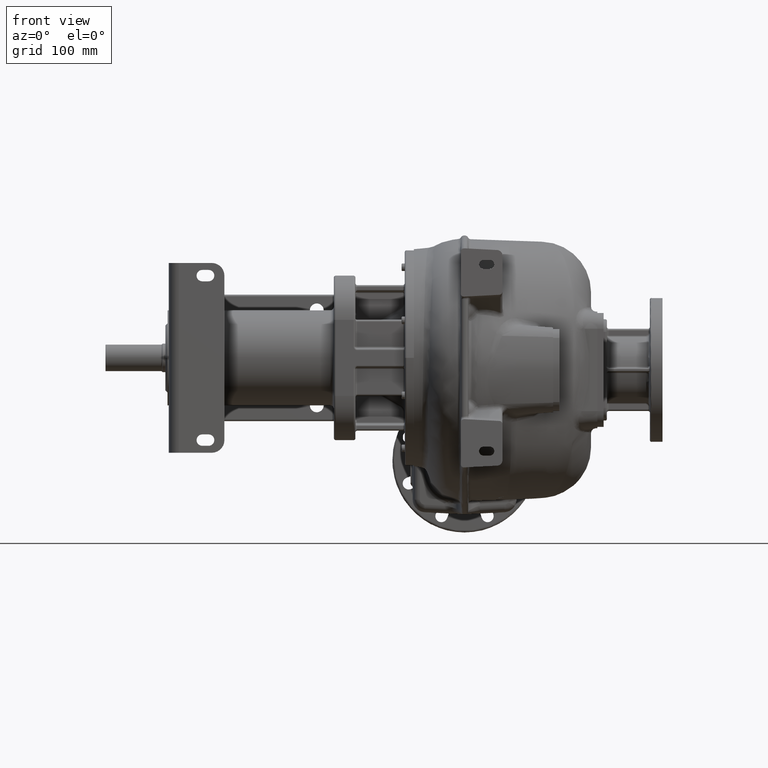
[diagram: clean part render]
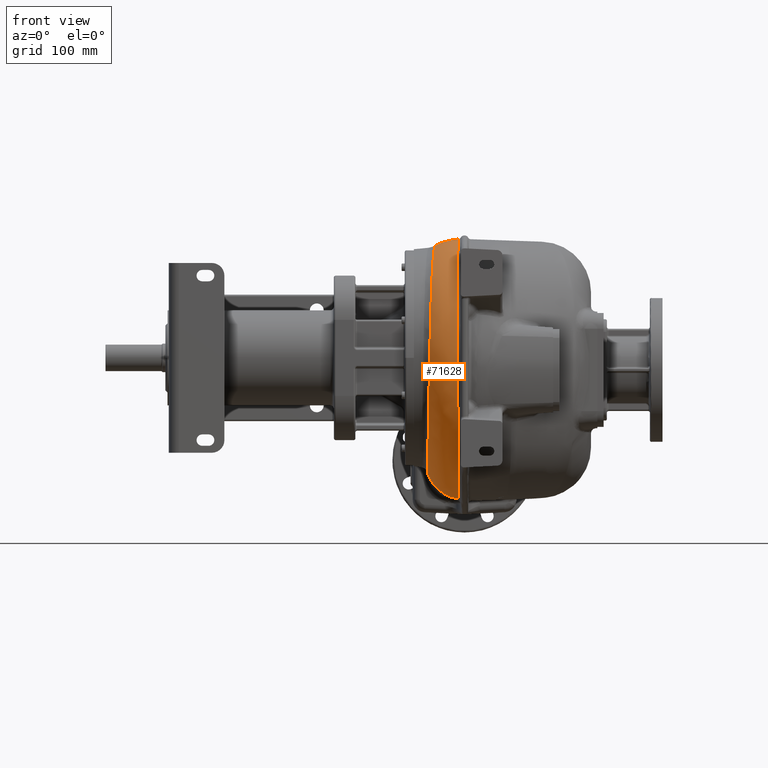
[diagram: same view with one face highlighted and labeled with its STEP entity id]
A machine part, front view. The second image highlights one B-rep face of the part: STEP entity #71628.
In plain terms, the highlighted face is a freeform B-spline surface patch.
Its self-contained STEP definition (entity closure, byte-faithful):
#1137=CARTESIAN_POINT('',(-5.916684251879E1,2.198767022094E2,
-1.805254930212E2));
#1138=CARTESIAN_POINT('',(-5.861539142815E1,2.198599892688E2,
-1.822862757690E2));
#1139=CARTESIAN_POINT('',(-5.659984782147E1,2.198034066170E2,
-1.878400752456E2));
#1140=CARTESIAN_POINT('',(-5.188004898580E1,2.197164179873E2,
-1.966669220246E2));
#1141=CARTESIAN_POINT('',(-4.411717058053E1,2.195960859494E2,
-2.061198540924E2));
#1142=CARTESIAN_POINT('',(-3.465939395E1,2.194747182056E2,-2.138752346734E2));
#1143=CARTESIAN_POINT('',(-2.386928381107E1,2.193577588253E2,
-2.196352703491E2));
#1144=CARTESIAN_POINT('',(-1.544815439239E1,2.193115807893E2,
-2.221864967304E2));
#1145=CARTESIAN_POINT('',(-1.081760228387E1,2.192862954922E2,
-2.230309093814E2));
#1146=CARTESIAN_POINT('',(-1.017971400711E1,2.192831059374E2,
-2.231368989397E2));
#1554=CARTESIAN_POINT('',(-1.020057652036E1,2.012945648818E2,
-2.213621677771E2));
#1555=CARTESIAN_POINT('',(-1.019994928694E1,2.018161507603E2,
-2.214350709545E2));
#1556=CARTESIAN_POINT('',(-1.019873154269E1,2.028304303245E2,
-2.215730854272E2));
#1557=CARTESIAN_POINT('',(-1.019699676130E1,2.042742421664E2,
-2.217596830801E2));
#1558=CARTESIAN_POINT('',(-1.019538687583E1,2.056120528009E2,
-2.219240486163E2));
#1559=CARTESIAN_POINT('',(-1.019392782887E1,2.068271123162E2,
-2.220662935067E2));
#1560=CARTESIAN_POINT('',(-1.019265558087E1,2.078928498245E2,
-2.221855966295E2));
#1561=CARTESIAN_POINT('',(-1.019155304125E1,2.088137914946E2,
-2.222846100312E2));
#1562=CARTESIAN_POINT('',(-1.019055403962E1,2.096469372037E2,
-2.223708931657E2));
#1563=CARTESIAN_POINT('',(-1.018960254150E1,2.104394309304E2,
-2.224500344875E2));
#1564=CARTESIAN_POINT('',(-1.018863747096E1,2.112429606508E2,
-2.225272889519E2));
#1565=CARTESIAN_POINT('',(-1.018768076849E1,2.120457479283E2,
-2.226013778216E2));
#1566=CARTESIAN_POINT('',(-1.018674421371E1,2.128351600737E2,
-2.226711619494E2));
#1567=CARTESIAN_POINT('',(-1.018581526156E1,2.136179314117E2,
-2.227372381618E2));
#1568=CARTESIAN_POINT('',(-1.018488683406E1,2.143986161209E2,
-2.228000664877E2));
#1569=CARTESIAN_POINT('',(-1.018395537353E1,2.151756967803E2,
-2.228597865805E2));
#1570=CARTESIAN_POINT('',(-1.018302715333E1,2.159521129511E2,
-2.229168140490E2));
#1571=CARTESIAN_POINT('',(-1.018204312035E1,2.167395625775E2,
-2.229722170329E2));
#1572=CARTESIAN_POINT('',(-1.018117881220E1,2.175487187264E2,
-2.230268016604E2));
#1573=CARTESIAN_POINT('',(-1.017973486839E1,2.183893626298E2,
-2.230815346615E2));
#1574=CARTESIAN_POINT('',(-1.018008473817E1,2.189807216068E2,
-2.231182476707E2));
#1575=CARTESIAN_POINT('',(-1.017971400711E1,2.192831059374E2,
-2.231368989397E2));
#1577=CARTESIAN_POINT('',(-5.916684251879E1,2.198767022094E2,
-1.805254930212E2));
#1578=CARTESIAN_POINT('',(-5.915654720197E1,2.187705746831E2,
-1.805183664106E2));
#1579=CARTESIAN_POINT('',(-5.913569685085E1,2.165938730213E2,
-1.804956276277E2));
#1580=CARTESIAN_POINT('',(-5.910378359272E1,2.134657141977E2,
-1.804020917923E2));
#1581=CARTESIAN_POINT('',(-5.907090121588E1,2.102831735459E2,
-1.802502047066E2));
#1582=CARTESIAN_POINT('',(-5.903810679847E1,2.070967494683E2,
-1.800420976576E2));
#1583=CARTESIAN_POINT('',(-5.900502411821E1,2.039148588882E2,
-1.797779923519E2));
#1584=CARTESIAN_POINT('',(-5.897167037210E1,2.007384052582E2,
-1.794575332237E2));
#1585=CARTESIAN_POINT('',(-5.893802089335E1,1.975671184741E2,
-1.790805822877E2));
#1586=CARTESIAN_POINT('',(-5.890410824385E1,1.944032673540E2,
-1.786474797777E2));
#1587=CARTESIAN_POINT('',(-5.886994762569E1,1.912482661071E2,
-1.781585502022E2));
#1588=CARTESIAN_POINT('',(-5.883553939689E1,1.881026299443E2,
-1.776139076483E2));
#1589=CARTESIAN_POINT('',(-5.880088387742E1,1.849670476361E2,
-1.770136465361E2));
#1590=CARTESIAN_POINT('',(-5.876596851791E1,1.818420768329E2,
-1.763578450073E2));
#1591=CARTESIAN_POINT('',(-5.873078006190E1,1.787289524662E2,
-1.756467128650E2));
#1592=CARTESIAN_POINT('',(-5.869531626463E1,1.756288962818E2,
-1.748805144118E2));
#1593=CARTESIAN_POINT('',(-5.865957716949E1,1.725431274105E2,
-1.740595672708E2));
#1594=CARTESIAN_POINT('',(-5.862356278744E1,1.694727564309E2,
-1.731841720689E2));
#1595=CARTESIAN_POINT('',(-5.858726172435E1,1.664184686002E2,
-1.722545170163E2));
#1596=CARTESIAN_POINT('',(-5.855066957327E1,1.633810171506E2,
-1.712708359507E2));
#1597=CARTESIAN_POINT('',(-5.851379148390E1,1.603610805714E2,
-1.702333564940E2));
#1598=CARTESIAN_POINT('',(-5.847662852432E1,1.573596864035E2,
-1.691424247998E2));
#1599=CARTESIAN_POINT('',(-5.843918773669E1,1.543781215784E2,
-1.679984952025E2));
#1600=CARTESIAN_POINT('',(-5.840146942910E1,1.514175925509E2,
-1.668020349120E2));
#1601=CARTESIAN_POINT('',(-5.836346787176E1,1.484793409433E2,
-1.655535715884E2));
#1602=CARTESIAN_POINT('',(-5.832517466949E1,1.455642004654E2,
-1.642534700555E2));
#1603=CARTESIAN_POINT('',(-5.828657205599E1,1.426729244572E2,
-1.629020665794E2));
#1604=CARTESIAN_POINT('',(-5.824764577460E1,1.398062673710E2,
-1.614997005820E2));
#1605=CARTESIAN_POINT('',(-5.820840349391E1,1.369649976602E2,
-1.600467943266E2));
#1606=CARTESIAN_POINT('',(-5.816885021663E1,1.341500485841E2,
-1.585438507556E2));
#1607=CARTESIAN_POINT('',(-5.812899339133E1,1.313623304992E2,
-1.569913628243E2));
#1608=CARTESIAN_POINT('',(-5.808883027754E1,1.286027555860E2,
-1.553898585554E2));
#1609=CARTESIAN_POINT('',(-5.804835614273E1,1.258722069088E2,
-1.537398593739E2));
#1610=CARTESIAN_POINT('',(-5.800756452772E1,1.231715347560E2,
-1.520418712039E2));
#1611=CARTESIAN_POINT('',(-5.796644016079E1,1.205015623437E2,
-1.502964133547E2));
#1612=CARTESIAN_POINT('',(-5.792496665940E1,1.178631234763E2,
-1.485039945197E2));
#1613=CARTESIAN_POINT('',(-5.788314623812E1,1.152569813107E2,
-1.466651641927E2));
#1614=CARTESIAN_POINT('',(-5.784098656102E1,1.126838837493E2,
-1.447804832117E2));
#1615=CARTESIAN_POINT('',(-5.779849343764E1,1.101445816141E2,
-1.428505049090E2));
#1616=CARTESIAN_POINT('',(-5.775566290859E1,1.076398359371E2,
-1.408758198994E2));
#1617=CARTESIAN_POINT('',(-5.771249475816E1,1.051705063933E2,
-1.388570919778E2));
#1618=CARTESIAN_POINT('',(-5.766898077924E1,1.027374198847E2,
-1.367949902818E2));
#1619=CARTESIAN_POINT('',(-5.762510627009E1,1.003414006294E2,
-1.346902140931E2));
#1620=CARTESIAN_POINT('',(-5.758085529030E1,9.798320486828E1,
-1.325433948714E2));
#1621=CARTESIAN_POINT('',(-5.753621535370E1,9.566346184333E1,
-1.303550847353E2));
#1622=CARTESIAN_POINT('',(-5.749119628813E1,9.338279116240E1,
-1.281259068950E2));
#1623=CARTESIAN_POINT('',(-5.744580101639E1,9.114179772012E1,
-1.258564532874E2));
#1624=CARTESIAN_POINT('',(-5.740003158918E1,8.894127872582E1,
-1.235475304620E2));
#1625=CARTESIAN_POINT('',(-5.735389398245E1,8.678207793816E1,
-1.212000029526E2));
#1626=CARTESIAN_POINT('',(-5.730737973254E1,8.466499273370E1,
-1.188147555742E2));
#1627=CARTESIAN_POINT('',(-5.726047829875E1,8.259080024677E1,
-1.163926780492E2));
#1628=CARTESIAN_POINT('',(-5.721317496675E1,8.056007751225E1,
-1.139344426930E2));
#1629=CARTESIAN_POINT('',(-5.716544506303E1,7.857339633152E1,
-1.114407074405E2));
#1630=CARTESIAN_POINT('',(-5.711728779060E1,7.663127184760E1,
-1.089121587193E2));
#1631=CARTESIAN_POINT('',(-5.706870959185E1,7.473427225469E1,
-1.063495869896E2));
#1632=CARTESIAN_POINT('',(-5.701971841598E1,7.288306398758E1,
-1.037539088808E2));
#1633=CARTESIAN_POINT('',(-5.697032093336E1,7.107828113461E1,
-1.011260205048E2));
#1634=CARTESIAN_POINT('',(-5.692051013722E1,6.932054572106E1,
-9.846686861429E1));
#1635=CARTESIAN_POINT('',(-5.687028030504E1,6.761040448664E1,
-9.577728623997E1));
#1636=CARTESIAN_POINT('',(-5.681961629597E1,6.594834967433E1,
-9.305805094834E1));
#1637=CARTESIAN_POINT('',(-5.676849570901E1,6.433486683578E1,
-9.030994133316E1));
#1638=CARTESIAN_POINT('',(-5.671690070794E1,6.277044126625E1,
-8.753373521952E1));
#1639=CARTESIAN_POINT('',(-5.666484177161E1,6.125551582082E1,
-8.473030002251E1));
#1640=CARTESIAN_POINT('',(-5.661232883831E1,5.979053997851E1,
-8.190049479594E1));
#1641=CARTESIAN_POINT('',(-5.655936618006E1,5.837595424118E1,
-7.904518981232E1));
#1642=CARTESIAN_POINT('',(-5.650594983404E1,5.701219946027E1,
-7.616529305175E1));
#1643=CARTESIAN_POINT('',(-5.645208061019E1,5.569973908727E1,
-7.326175001529E1));
#1644=CARTESIAN_POINT('',(-5.639774264683E1,5.443899596816E1,
-7.033550084039E1));
#1645=CARTESIAN_POINT('',(-5.634292043299E1,5.323039617391E1,
-6.738751463405E1));
#1646=CARTESIAN_POINT('',(-5.628759170475E1,5.207431125645E1,
-6.441861203816E1));
#1647=CARTESIAN_POINT('',(-5.623174206868E1,5.097104081463E1,
-6.142953302671E1));
#1648=CARTESIAN_POINT('',(-5.617538052277E1,4.992084753251E1,
-5.842106681225E1));
#1649=CARTESIAN_POINT('',(-5.611850664682E1,4.892401144483E1,
-5.539400631072E1));
#1650=CARTESIAN_POINT('',(-5.606112944942E1,4.798095434870E1,
-5.234959109278E1));
#1651=CARTESIAN_POINT('',(-5.600325587539E1,4.709207368847E1,
-4.928907674645E1));
#1652=CARTESIAN_POINT('',(-5.594487626399E1,4.625772065413E1,
-4.621375918839E1));
#1653=CARTESIAN_POINT('',(-5.588598409645E1,4.547820392231E1,
-4.312482810005E1));
#1654=CARTESIAN_POINT('',(-5.582656095322E1,4.475371767116E1,
-4.002310204674E1));
#1655=CARTESIAN_POINT('',(-5.576657867306E1,4.408447602866E1,
-3.690943028633E1));
#1656=CARTESIAN_POINT('',(-5.570603248976E1,4.347063517193E1,
-3.378464991399E1));
#1657=CARTESIAN_POINT('',(-5.564493786779E1,4.291234844173E1,
-3.064976750412E1));
#1658=CARTESIAN_POINT('',(-5.558331014761E1,4.240979205550E1,
-2.750587286196E1));
#1659=CARTESIAN_POINT('',(-5.552115684596E1,4.196311469803E1,
-2.435404372612E1));
#1660=CARTESIAN_POINT('',(-5.545847620439E1,4.157244494315E1,
-2.119538520021E1));
#1661=CARTESIAN_POINT('',(-5.539527266077E1,4.123790135327E1,
-1.803083323125E1));
#1662=CARTESIAN_POINT('',(-5.533152377871E1,4.095956137415E1,
-1.486130051214E1));
#1663=CARTESIAN_POINT('',(-5.526720959394E1,4.073750658126E1,
-1.168770447128E1));
#1664=CARTESIAN_POINT('',(-5.520230659476E1,4.057183733327E1,
-8.510941378603E0));
#1665=CARTESIAN_POINT('',(-5.513681040337E1,4.046257311235E1,
-5.331891193876E0));
#1666=CARTESIAN_POINT('',(-5.507072672978E1,4.040970464012E1,
-2.151452126303E0));
#1667=CARTESIAN_POINT('',(-5.500406255530E1,4.041324556920E1,1.029484669911E0));
#1668=CARTESIAN_POINT('',(-5.493683022594E1,4.047320937466E1,4.209810111836E0));
#1669=CARTESIAN_POINT('',(-5.486903777391E1,4.058957767765E1,7.388220396184E0));
#1670=CARTESIAN_POINT('',(-5.480067200426E1,4.076228081142E1,1.056346757849E1));
#1671=CARTESIAN_POINT('',(-5.473172793588E1,4.099123583502E1,1.373424001336E1));
#1672=CARTESIAN_POINT('',(-5.466218020770E1,4.127636600013E1,1.689973976895E1));
#1673=CARTESIAN_POINT('',(-5.459198971392E1,4.161762570825E1,2.005927336560E1));
#1674=CARTESIAN_POINT('',(-5.452114783688E1,4.201490659618E1,2.321212407059E1));
#1675=CARTESIAN_POINT('',(-5.444966555280E1,4.246808407239E1,2.635750083078E1));
#1676=CARTESIAN_POINT('',(-5.437755463311E1,4.297699720107E1,2.949430210230E1));
#1677=CARTESIAN_POINT('',(-5.430481522296E1,4.354146002612E1,3.262145546776E1));
#1678=CARTESIAN_POINT('',(-5.423143665043E1,4.416125802017E1,3.573786150361E1));
#1679=CARTESIAN_POINT('',(-5.415741049709E1,4.483619100200E1,3.884250350871E1));
#1680=CARTESIAN_POINT('',(-5.408270095576E1,4.556604833525E1,4.193447786326E1));
#1681=CARTESIAN_POINT('',(-5.400727411019E1,4.635061472498E1,4.501285706575E1));
#1682=CARTESIAN_POINT('',(-5.393109267836E1,4.718970546113E1,4.807674621952E1));
#1683=CARTESIAN_POINT('',(-5.385414978494E1,4.808306762936E1,5.112524309443E1));
#1684=CARTESIAN_POINT('',(-5.377645556641E1,4.903039702862E1,5.415743742108E1));
#1685=CARTESIAN_POINT('',(-5.369801292132E1,5.003138193986E1,5.717237290419E1));
#1686=CARTESIAN_POINT('',(-5.361882774071E1,5.108570255784E1,6.016907494530E1));
#1687=CARTESIAN_POINT('',(-5.353890287786E1,5.219298134152E1,6.314644650267E1));
#1688=CARTESIAN_POINT('',(-5.345821870622E1,5.335280543899E1,6.610341804922E1));
#1689=CARTESIAN_POINT('',(-5.337676518005E1,5.456475011267E1,6.903888658758E1));
#1690=CARTESIAN_POINT('',(-5.329451056832E1,5.582842112046E1,7.195192355589E1));
#1691=CARTESIAN_POINT('',(-5.321140230499E1,5.714352397887E1,7.484181849610E1));
#1692=CARTESIAN_POINT('',(-5.312741101162E1,5.850971018476E1,7.770781618257E1));
#1693=CARTESIAN_POINT('',(-5.304254835132E1,5.992660002845E1,8.054920312539E1));
#1694=CARTESIAN_POINT('',(-5.295682957494E1,6.139371658129E1,8.336501695311E1));
#1695=CARTESIAN_POINT('',(-5.287026092247E1,6.291049271438E1,8.615419320785E1));
#1696=CARTESIAN_POINT('',(-5.278283786328E1,6.447634506095E1,8.891569223949E1));
#1697=CARTESIAN_POINT('',(-5.269456012695E1,6.609067982248E1,9.164847758470E1));
#1698=CARTESIAN_POINT('',(-5.260538745439E1,6.775300523923E1,9.435177680920E1));
#1699=CARTESIAN_POINT('',(-5.251528307809E1,6.946283400872E1,9.702480511502E1));
#1700=CARTESIAN_POINT('',(-5.242420802779E1,7.121971168646E1,9.966681181710E1));
#1701=CARTESIAN_POINT('',(-5.233212265967E1,7.302320295807E1,1.022770865260E2));
#1702=CARTESIAN_POINT('',(-5.223902338474E1,7.487276956078E1,1.048549491148E2));
#1703=CARTESIAN_POINT('',(-5.214491516488E1,7.676785257586E1,1.073996446944E2));
#1704=CARTESIAN_POINT('',(-5.204980692234E1,7.870791505658E1,1.099104348784E2));
#1705=CARTESIAN_POINT('',(-5.195370163157E1,8.069228426235E1,1.123864256808E2));
#1706=CARTESIAN_POINT('',(-5.185658055555E1,8.272017792517E1,1.148266547036E2));
#1707=CARTESIAN_POINT('',(-5.175843606172E1,8.479083176820E1,1.172301854479E2));
#1708=CARTESIAN_POINT('',(-5.165922983532E1,8.690344258368E1,1.195961129941E2));
#1709=CARTESIAN_POINT('',(-5.155890319541E1,8.905741096931E1,1.219237946560E2));
#1710=CARTESIAN_POINT('',(-5.145739891131E1,9.125218056278E1,1.242125833521E2));
#1711=CARTESIAN_POINT('',(-5.135471103816E1,9.348717250908E1,1.264619100610E2));
#1712=CARTESIAN_POINT('',(-5.125084330751E1,9.576175320953E1,1.286711884488E2));
#1713=CARTESIAN_POINT('',(-5.114579582198E1,9.807512729680E1,1.308396701847E2));
#1714=CARTESIAN_POINT('',(-5.103956739255E1,1.004264865496E2,1.329666120649E2));
#1715=CARTESIAN_POINT('',(-5.093215677332E1,1.028150062935E2,1.350512662348E2));
#1716=CARTESIAN_POINT('',(-5.082352259846E1,1.052398928730E2,1.370929729851E2));
#1717=CARTESIAN_POINT('',(-5.071363170385E1,1.077004041861E2,1.390911008785E2));
#1718=CARTESIAN_POINT('',(-5.060243620391E1,1.101958156819E2,1.410450509095E2));
#1719=CARTESIAN_POINT('',(-5.048986314426E1,1.127254386320E2,1.429542610859E2));
#1720=CARTESIAN_POINT('',(-5.037584866613E1,1.152885949274E2,1.448182047589E2));
#1721=CARTESIAN_POINT('',(-5.026040266514E1,1.178845358484E2,1.466363839311E2));
#1722=CARTESIAN_POINT('',(-5.014353615872E1,1.205125423029E2,1.484082866784E2));
#1723=CARTESIAN_POINT('',(-5.002524846276E1,1.231718269825E2,1.501333691545E2));
#1724=CARTESIAN_POINT('',(-4.990552391878E1,1.258612937749E2,1.518109256926E2));
#1725=CARTESIAN_POINT('',(-4.978435725109E1,1.285798867692E2,1.534402861777E2));
#1726=CARTESIAN_POINT('',(-4.966170935522E1,1.313264663651E2,1.550207939718E2));
#1727=CARTESIAN_POINT('',(-4.953752612548E1,1.341000541197E2,1.565519120422E2));
#1728=CARTESIAN_POINT('',(-4.941174691315E1,1.368998842355E2,1.580332248078E2));
#1729=CARTESIAN_POINT('',(-4.928429222937E1,1.397252526634E2,1.594643273071E2));
#1730=CARTESIAN_POINT('',(-4.915510848411E1,1.425754214625E2,1.608449009604E2));
#1731=CARTESIAN_POINT('',(-4.902419324371E1,1.454495079189E2,1.621745721001E2));
#1732=CARTESIAN_POINT('',(-4.889155752717E1,1.483465915926E2,1.634529207140E2));
#1733=CARTESIAN_POINT('',(-4.875720446536E1,1.512657571542E2,1.646795420571E2));
#1734=CARTESIAN_POINT('',(-4.862109363477E1,1.542060698015E2,1.658540632537E2));
#1735=CARTESIAN_POINT('',(-4.848319320658E1,1.571666137609E2,1.669761099306E2));
#1736=CARTESIAN_POINT('',(-4.834343662050E1,1.601464596724E2,1.680453327320E2));
#1737=CARTESIAN_POINT('',(-4.820172603140E1,1.631446609173E2,1.690614019792E2));
#1738=CARTESIAN_POINT('',(-4.805797579343E1,1.661603047587E2,1.700239868683E2));
#1739=CARTESIAN_POINT('',(-4.791210522348E1,1.691926445089E2,1.709327870308E2));
#1740=CARTESIAN_POINT('',(-4.776406843598E1,1.722408789378E2,1.717876171049E2));
#1741=CARTESIAN_POINT('',(-4.761382886193E1,1.753042031385E2,1.725882707485E2));
#1742=CARTESIAN_POINT('',(-4.746138435605E1,1.783814003786E2,1.733344196162E2));
#1743=CARTESIAN_POINT('',(-4.730673899365E1,1.814711625562E2,1.740257364429E2));
#1744=CARTESIAN_POINT('',(-4.714984517232E1,1.845721878724E2,1.746619593377E2));
#1745=CARTESIAN_POINT('',(-4.699066023998E1,1.876831969229E2,1.752428514489E2));
#1746=CARTESIAN_POINT('',(-4.682909963924E1,1.908034854127E2,1.757682970070E2));
#1747=CARTESIAN_POINT('',(-4.666501166070E1,1.939323249360E2,1.762382045801E2));
#1748=CARTESIAN_POINT('',(-4.649825044697E1,1.970690311828E2,1.766524513410E2));
#1749=CARTESIAN_POINT('',(-4.632872904977E1,2.002128177918E2,1.770108737453E2));
#1750=CARTESIAN_POINT('',(-4.615642989517E1,2.033625717253E2,1.773133861960E2));
#1751=CARTESIAN_POINT('',(-4.598131962676E1,2.065172038786E2,1.775599045025E2));
#1752=CARTESIAN_POINT('',(-4.580336360410E1,2.096754097124E2,1.777503525116E2));
#1753=CARTESIAN_POINT('',(-4.562253504342E1,2.128358623313E2,1.778846707079E2));
#1754=CARTESIAN_POINT('',(-4.543879548633E1,2.159974312114E2,1.779628273184E2));
#1755=CARTESIAN_POINT('',(-4.531430865124E1,2.181052442490E2,1.779774880934E2));
#1756=CARTESIAN_POINT('',(-4.525156820779E1,2.191590052963E2,1.779754472696E2));
#1758=CARTESIAN_POINT('',(-4.525156820779E1,2.191590052963E2,1.779754472696E2));
#1759=CARTESIAN_POINT('',(-4.509205461900E1,2.218390747443E2,1.779703727806E2));
#1760=CARTESIAN_POINT('',(-4.476556147618E1,2.271965358707E2,1.778391874465E2));
#1761=CARTESIAN_POINT('',(-4.425276608506E1,2.352113099532E2,1.772805209298E2));
#1762=CARTESIAN_POINT('',(-4.371537304262E1,2.431903071072E2,1.763615706534E2));
#1763=CARTESIAN_POINT('',(-4.315235306290E1,2.511176950253E2,1.750843184118E2));
#1764=CARTESIAN_POINT('',(-4.262377490644E1,2.581404159225E2,1.736255187465E2));
#1765=CARTESIAN_POINT('',(-4.227639881531E1,2.625039262025E2,1.725454626131E2));
#1766=CARTESIAN_POINT('',(-4.213301338181E1,2.642652668738E2,1.720806877845E2));
#1768=CARTESIAN_POINT('',(-4.213301338181E1,2.642652668738E2,1.720806877845E2));
#1769=CARTESIAN_POINT('',(-4.177110964679E1,2.638483433194E2,1.724067803117E2));
#1770=CARTESIAN_POINT('',(-4.103585629227E1,2.630041152411E2,1.730528405976E2));
#1771=CARTESIAN_POINT('',(-3.989798320557E1,2.617064300768E2,1.740028036168E2));
#1772=CARTESIAN_POINT('',(-3.872473181214E1,2.603781236787E2,1.749323150320E2));
#1773=CARTESIAN_POINT('',(-3.751581644898E1,2.590196773310E2,1.758401979327E2));
#1774=CARTESIAN_POINT('',(-3.627083082610E1,2.576318825385E2,1.767252857461E2));
#1775=CARTESIAN_POINT('',(-3.499077321206E1,2.562142490451E2,1.775863485518E2));
#1776=CARTESIAN_POINT('',(-3.367768004417E1,2.547651412971E2,1.784216956156E2));
#1777=CARTESIAN_POINT('',(-3.233104119810E1,2.532852159462E2,1.792300143378E2));
#1778=CARTESIAN_POINT('',(-3.095291818177E1,2.517765233595E2,1.800089295217E2));
#1779=CARTESIAN_POINT('',(-2.954561706711E1,2.502414491839E2,1.807562575837E2));
#1780=CARTESIAN_POINT('',(-2.811149406145E1,2.486824549542E2,1.814700850161E2));
#1781=CARTESIAN_POINT('',(-2.665325695162E1,2.471016873658E2,1.821488773797E2));
#1782=CARTESIAN_POINT('',(-2.517707849016E1,2.454984561108E2,1.827906179082E2));
#1783=CARTESIAN_POINT('',(-2.368524603509E1,2.438732399742E2,1.833939720181E2));
#1784=CARTESIAN_POINT('',(-2.218865046802E1,2.422343657409E2,1.839549895569E2));
#1785=CARTESIAN_POINT('',(-2.070038869384E1,2.405934006440E2,1.844700838978E2));
#1786=CARTESIAN_POINT('',(-1.923502006163E1,2.389616145415E2,1.849368255234E2));
#1787=CARTESIAN_POINT('',(-1.781646357802E1,2.373604881377E2,1.853517120262E2));
#1788=CARTESIAN_POINT('',(-1.647173175383E1,2.358115757777E2,1.857127039348E2));
#1789=CARTESIAN_POINT('',(-1.521671561284E1,2.343323742908E2,1.860213938154E2));
#1790=CARTESIAN_POINT('',(-1.405022824186E1,2.329180367194E2,1.862844900165E2));
#1791=CARTESIAN_POINT('',(-1.297189223371E1,2.315682949807E2,1.865074430952E2));
#1792=CARTESIAN_POINT('',(-1.197971236506E1,2.302821847883E2,1.866954978010E2));
#1793=CARTESIAN_POINT('',(-1.107222501292E1,2.290595085944E2,1.868533720145E2));
#1794=CARTESIAN_POINT('',(-1.052132615620E1,2.282858808750E2,1.869413536679E2));
#1795=CARTESIAN_POINT('',(-1.025928142582E1,2.279101150040E2,1.869816427398E2));
#1797=CARTESIAN_POINT('',(-1.025928142582E1,2.279101150040E2,1.869816427398E2));
#1798=CARTESIAN_POINT('',(-1.021901759131E1,2.268481052805E2,1.870867499604E2));
#1799=CARTESIAN_POINT('',(-1.014190404997E1,2.247346626261E2,1.872775460084E2));
#1800=CARTESIAN_POINT('',(-1.004066581439E1,2.215955476382E2,1.875073118046E2));
#1801=CARTESIAN_POINT('',(-9.958501681720E0,2.184926585876E2,1.876823228544E2));
#1802=CARTESIAN_POINT('',(-9.897693192660E0,2.154296360436E2,1.878044906846E2));
#1803=CARTESIAN_POINT('',(-9.860276487356E0,2.124100920840E2,1.878758614473E2));
#1804=CARTESIAN_POINT('',(-9.850900550400E0,2.104293999871E2,1.878910473072E2));
#1805=CARTESIAN_POINT('',(-9.850059223004E0,2.094470320134E2,1.878909311784E2));
#1807=CARTESIAN_POINT('',(-9.850059223004E0,2.094470320134E2,1.878909311784E2));
#1808=CARTESIAN_POINT('',(-9.849131350492E0,2.083635879162E2,1.878908027040E2));
#1809=CARTESIAN_POINT('',(-9.847265462452E0,2.061964733297E2,1.878718792587E2));
#1810=CARTESIAN_POINT('',(-9.844454630774E0,2.029463440544E2,1.877875074516E2));
#1811=CARTESIAN_POINT('',(-9.841649112459E0,1.996969813687E2,1.876471303873E2));
#1812=CARTESIAN_POINT('',(-9.838871773811E0,1.964487649697E2,1.874506865521E2));
#1813=CARTESIAN_POINT('',(-9.836155428889E0,1.932019602602E2,1.871980517291E2));
#1814=CARTESIAN_POINT('',(-9.833487510561E0,1.899569105645E2,1.868892229765E2));
#1815=CARTESIAN_POINT('',(-9.830827103837E0,1.867138311477E2,1.865241589196E2));
#1816=CARTESIAN_POINT('',(-9.828152853309E0,1.834735440926E2,1.861028389791E2));
#1817=CARTESIAN_POINT('',(-9.825455673352E0,1.802381252885E2,1.856254345086E2));
#1818=CARTESIAN_POINT('',(-9.822727377137E0,1.770094331487E2,1.850921601339E2));
#1819=CARTESIAN_POINT('',(-9.819974789060E0,1.737893734490E2,1.845033056586E2));
#1820=CARTESIAN_POINT('',(-9.817198849900E0,1.705786812054E2,1.838589840502E2));
#1821=CARTESIAN_POINT('',(-9.814427332442E0,1.673780855300E2,1.831592828818E2));
#1822=CARTESIAN_POINT('',(-9.811696348654E0,1.641883489795E2,1.824042871494E2));
#1823=CARTESIAN_POINT('',(-9.809030433085E0,1.610100670767E2,1.815940060407E2));
#1824=CARTESIAN_POINT('',(-9.806400108337E0,1.578436725186E2,1.807285363117E2));
#1825=CARTESIAN_POINT('',(-9.803781725601E0,1.546896205599E2,1.798079745249E2));
#1826=CARTESIAN_POINT('',(-9.801153230694E0,1.515483943939E2,1.788323823239E2));
#1827=CARTESIAN_POINT('',(-9.798505882356E0,1.484206470041E2,1.778018491320E2));
#1828=CARTESIAN_POINT('',(-9.796721327563E0,1.463447905568E2,1.770781993521E2));
#1829=CARTESIAN_POINT('',(-9.795822606355E0,1.453093788699E2,1.767072543905E2));
#1831=CARTESIAN_POINT('',(-9.795822606355E0,1.453093788699E2,1.767072543905E2));
#1832=CARTESIAN_POINT('',(-9.795242935751E0,1.446504199302E2,1.764711771548E2));
#1833=CARTESIAN_POINT('',(-9.803064415589E0,1.433044928124E2,1.759806763265E2));
#1834=CARTESIAN_POINT('',(-9.843908782169E0,1.411951400742E2,1.751836972565E2));
#1835=CARTESIAN_POINT('',(-9.914901008159E0,1.390206412024E2,1.743313505822E2));
#1836=CARTESIAN_POINT('',(-1.001450541809E1,1.367986278206E2,1.734276955184E2));
#1837=CARTESIAN_POINT('',(-1.013649022687E1,1.345442182764E2,1.724765454116E2));
#1838=CARTESIAN_POINT('',(-1.027160450006E1,1.323075058694E2,1.714980147954E2));
#1839=CARTESIAN_POINT('',(-1.040588004507E1,1.301499632801E2,1.705211125749E2));
#1840=CARTESIAN_POINT('',(-1.053110227815E1,1.280646070385E2,1.695461792247E2));
#1841=CARTESIAN_POINT('',(-1.063951028728E1,1.260396448009E2,1.685704529325E2));
#1842=CARTESIAN_POINT('',(-1.072326782771E1,1.240844621817E2,1.676012213470E2));
#1843=CARTESIAN_POINT('',(-1.077615447223E1,1.222072708499E2,1.666456611610E2));
#1844=CARTESIAN_POINT('',(-1.078748176287E1,1.210166890704E2,1.660245813696E2));
#1845=CARTESIAN_POINT('',(-1.078681979600E1,1.204356040242E2,1.657180720611E2));
#1847=CARTESIAN_POINT('',(-1.078681979600E1,1.204356040242E2,1.657180720611E2));
#1848=CARTESIAN_POINT('',(-1.078567980362E1,1.194411035306E2,1.651934907241E2));
#1849=CARTESIAN_POINT('',(-1.078339749887E1,1.174608884830E2,1.641268556446E2));
#1850=CARTESIAN_POINT('',(-1.077996390996E1,1.145179887640E2,1.624749874748E2));
#1851=CARTESIAN_POINT('',(-1.077652150886E1,1.116030075658E2,1.607714867702E2));
#1852=CARTESIAN_POINT('',(-1.077307080946E1,1.087166074579E2,1.590166696619E2));
#1853=CARTESIAN_POINT('',(-1.076961394949E1,1.058594300258E2,1.572108282031E2));
#1854=CARTESIAN_POINT('',(-1.076615045685E1,1.030321151615E2,1.553542063048E2));
#1855=CARTESIAN_POINT('',(-1.076267391604E1,1.002352242539E2,1.534470325969E2));
#1856=CARTESIAN_POINT('',(-1.075918545351E1,9.746916653775E1,1.514895636318E2));
#1857=CARTESIAN_POINT('',(-1.075568565497E1,9.473482668430E1,1.494823341331E2));
#1858=CARTESIAN_POINT('',(-1.075217607980E1,9.203359220946E1,1.474262825374E2));
#1859=CARTESIAN_POINT('',(-1.074865802611E1,8.936673534051E1,1.453223122656E2));
#1860=CARTESIAN_POINT('',(-1.074513308259E1,8.673562973674E1,1.431714624799E2));
#1861=CARTESIAN_POINT('',(-1.074160205573E1,8.414107636532E1,1.409743462855E2));
#1862=CARTESIAN_POINT('',(-1.073806595717E1,8.158367019566E1,1.387313835507E2));
#1863=CARTESIAN_POINT('',(-1.073452417258E1,7.906406071258E1,1.364430239529E2));
#1864=CARTESIAN_POINT('',(-1.073096921562E1,7.658289191486E1,1.341096568064E2));
#1865=CARTESIAN_POINT('',(-1.072739980164E1,7.414074142791E1,1.317317592059E2));
#1866=CARTESIAN_POINT('',(-1.072381896665E1,7.173815284610E1,1.293098482769E2));
#1867=CARTESIAN_POINT('',(-1.072022941970E1,6.937567626679E1,1.268443984350E2));
#1868=CARTESIAN_POINT('',(-1.071663193799E1,6.705396398637E1,1.243359684606E2));
#1869=CARTESIAN_POINT('',(-1.071302743967E1,6.477413485496E1,1.217856312344E2));
#1870=CARTESIAN_POINT('',(-1.070941678231E1,6.253722214333E1,1.191944187266E2));
#1871=CARTESIAN_POINT('',(-1.070580138485E1,6.034431161860E1,1.165634730592E2));
#1872=CARTESIAN_POINT('',(-1.070218017795E1,5.819620211426E1,1.138936417450E2));
#1873=CARTESIAN_POINT('',(-1.069854760053E1,5.609328448717E1,1.111852433183E2));
#1874=CARTESIAN_POINT('',(-1.069489847499E1,5.403606777833E1,1.084387045707E2));
#1875=CARTESIAN_POINT('',(-1.069123660651E1,5.202486313075E1,1.056544142469E2));
#1876=CARTESIAN_POINT('',(-1.068756732887E1,5.006035203675E1,1.028332235638E2));
#1877=CARTESIAN_POINT('',(-1.068389188249E1,4.814341054795E1,9.997629924178E1));
#1878=CARTESIAN_POINT('',(-1.068021106171E1,4.627484472197E1,9.708475370615E1));
#1879=CARTESIAN_POINT('',(-1.067652574205E1,4.445547345019E1,9.415976927381E1));
#1880=CARTESIAN_POINT('',(-1.067283663039E1,4.268586795310E1,9.120216415142E1));
#1881=CARTESIAN_POINT('',(-1.066914304011E1,4.096657190639E1,8.821269532690E1));
#1882=CARTESIAN_POINT('',(-1.066543979007E1,3.929813013410E1,8.519211952426E1));
#1883=CARTESIAN_POINT('',(-1.066172076464E1,3.768111035334E1,8.214117475229E1));
#1884=CARTESIAN_POINT('',(-1.065798514519E1,3.611590323153E1,7.906046896124E1));
#1885=CARTESIAN_POINT('',(-1.065423892936E1,3.460284656956E1,7.595065999922E1));
#1886=CARTESIAN_POINT('',(-1.065048710459E1,3.314228997663E1,7.281233854973E1));
#1887=CARTESIAN_POINT('',(-1.064672945957E1,3.173469679938E1,6.964630654477E1));
#1888=CARTESIAN_POINT('',(-1.064296630657E1,3.038074114105E1,6.645385806281E1));
#1889=CARTESIAN_POINT('',(-1.063919789084E1,2.908103232417E1,6.323620820350E1));
#1890=CARTESIAN_POINT('',(-1.063542452277E1,2.783619255508E1,5.999466922551E1));
#1891=CARTESIAN_POINT('',(-1.063164631246E1,2.664670280634E1,5.673024974263E1));
#1892=CARTESIAN_POINT('',(-1.062786249511E1,2.551295938464E1,5.344370150443E1));
#1893=CARTESIAN_POINT('',(-1.062406406854E1,2.443537419540E1,5.013583400312E1));
#1894=CARTESIAN_POINT('',(-1.062025342699E1,2.341419961067E1,4.680745125297E1));
#1895=CARTESIAN_POINT('',(-1.061643295921E1,2.244977815373E1,4.345959249935E1));
#1896=CARTESIAN_POINT('',(-1.061260556187E1,2.154245892051E1,4.009336057366E1));
#1897=CARTESIAN_POINT('',(-1.060877411429E1,2.069258030268E1,3.670984886136E1));
#1898=CARTESIAN_POINT('',(-1.060494251769E1,1.990047380962E1,3.331015877440E1));
#1899=CARTESIAN_POINT('',(-1.060111159911E1,1.916643912061E1,2.989528020650E1));
#1900=CARTESIAN_POINT('',(-1.059727453985E1,1.849077662336E1,2.646619683748E1));
#1901=CARTESIAN_POINT('',(-1.059342592846E1,1.787378755605E1,2.302392395976E1));
#1902=CARTESIAN_POINT('',(-1.058955805269E1,1.731577770450E1,1.956938678261E1));
#1903=CARTESIAN_POINT('',(-1.058567277436E1,1.681687405710E1,1.610319680902E1));
#1904=CARTESIAN_POINT('',(-1.058177671039E1,1.637719161329E1,1.262603351205E1));
#1905=CARTESIAN_POINT('',(-1.057787549351E1,1.599687060304E1,9.138479349221E0));
#1906=CARTESIAN_POINT('',(-1.057397701596E1,1.567611261219E1,5.641505562338E0));
#1907=CARTESIAN_POINT('',(-1.057007906842E1,1.541514764161E1,2.136511743543E0));
#1908=CARTESIAN_POINT('',(-1.056617739302E1,1.521417349572E1,
-1.375198799706E0));
#1909=CARTESIAN_POINT('',(-1.056226804543E1,1.507337264702E1,
-4.892232255717E0));
#1910=CARTESIAN_POINT('',(-1.055834677757E1,1.499289116134E1,
-8.413574966726E0));
#1911=CARTESIAN_POINT('',(-1.055440764825E1,1.497289843426E1,
-1.193834595095E1));
#1912=CARTESIAN_POINT('',(-1.055045084317E1,1.501349097978E1,
-1.546562653195E1));
#1913=CARTESIAN_POINT('',(-1.054648609497E1,1.511466434887E1,
-1.899453215818E1));
#1914=CARTESIAN_POINT('',(-1.054252366250E1,1.527642327287E1,
-2.252377020063E1));
#1915=CARTESIAN_POINT('',(-1.053856271116E1,1.549874504947E1,
-2.605204352119E1));
#1916=CARTESIAN_POINT('',(-1.053460012269E1,1.578158934466E1,
-2.957803978838E1));
#1917=CARTESIAN_POINT('',(-1.053063323766E1,1.612490109164E1,
-3.310050856565E1));
#1918=CARTESIAN_POINT('',(-1.052665878687E1,1.652865108570E1,
-3.661851780110E1));
#1919=CARTESIAN_POINT('',(-1.052267366577E1,1.699281266177E1,
-4.013110336979E1));
#1920=CARTESIAN_POINT('',(-1.051867422169E1,1.751736756564E1,
-4.363726702937E1));
#1921=CARTESIAN_POINT('',(-1.051465862675E1,1.810229412339E1,
-4.713616932007E1));
#1922=CARTESIAN_POINT('',(-1.051064008668E1,1.874748869873E1,
-5.062724333711E1));
#1923=CARTESIAN_POINT('',(-1.050662196677E1,1.945287806021E1,
-5.410984118459E1));
#1924=CARTESIAN_POINT('',(-1.050260044193E1,2.021844198497E1,
-5.758344614489E1));
#1925=CARTESIAN_POINT('',(-1.049857408018E1,2.104401999405E1,
-6.104680946218E1));
#1926=CARTESIAN_POINT('',(-1.049454148535E1,2.192933486532E1,
-6.449831979326E1));
#1927=CARTESIAN_POINT('',(-1.049050125417E1,2.287409867585E1,
-6.793647208141E1));
#1928=CARTESIAN_POINT('',(-1.048645219276E1,2.387795991247E1,
-7.135967760527E1));
#1929=CARTESIAN_POINT('',(-1.048239177747E1,2.494080150755E1,
-7.476720495005E1));
#1930=CARTESIAN_POINT('',(-1.047831878184E1,2.606255437300E1,
-7.815839761729E1));
#1931=CARTESIAN_POINT('',(-1.047424302969E1,2.724302740954E1,
-8.153265453614E1));
#1932=CARTESIAN_POINT('',(-1.047016222031E1,2.848203361498E1,
-8.488929055646E1));
#1933=CARTESIAN_POINT('',(-1.046607686517E1,2.977911915726E1,
-8.822689730008E1));
#1934=CARTESIAN_POINT('',(-1.046198698585E1,3.113382815025E1,
-9.154414695196E1));
#1935=CARTESIAN_POINT('',(-1.045789288382E1,3.254564914113E1,
-9.483964508789E1));
#1936=CARTESIAN_POINT('',(-1.045379473788E1,3.401414713194E1,
-9.811224344171E1));
#1937=CARTESIAN_POINT('',(-1.044969181937E1,3.553908717113E1,
-1.013612336548E2));
#1938=CARTESIAN_POINT('',(-1.044558526325E1,3.712021121362E1,
-1.045858146339E2));
#1939=CARTESIAN_POINT('',(-1.044146923163E1,3.875729715509E1,
-1.077852094041E2));
#1940=CARTESIAN_POINT('',(-1.043734244116E1,4.044996488856E1,
-1.109586435188E2));
#1941=CARTESIAN_POINT('',(-1.043320670569E1,4.219781027454E1,
-1.141052955144E2));
#1942=CARTESIAN_POINT('',(-1.042906329026E1,4.400043495380E1,
-1.172243356597E2));
#1943=CARTESIAN_POINT('',(-1.042491381522E1,4.585746714930E1,
-1.203149603954E2));
#1944=CARTESIAN_POINT('',(-1.042076053729E1,4.776832558806E1,
-1.233760153438E2));
#1945=CARTESIAN_POINT('',(-1.041660592475E1,4.973236899849E1,
-1.264062894049E2));
#1946=CARTESIAN_POINT('',(-1.041245294667E1,5.174894351687E1,
-1.294045889687E2));
#1947=CARTESIAN_POINT('',(-1.040829283477E1,5.381740266417E1,
-1.323697771067E2));
#1948=CARTESIAN_POINT('',(-1.040411414410E1,5.593735738514E1,
-1.353010775503E2));
#1949=CARTESIAN_POINT('',(-1.039992168062E1,5.810829503419E1,
-1.381977812116E2));
#1950=CARTESIAN_POINT('',(-1.039572141939E1,6.032971515154E1,
-1.410592007498E2));
#1951=CARTESIAN_POINT('',(-1.039151921144E1,6.260107701160E1,
-1.438845723183E2));
#1952=CARTESIAN_POINT('',(-1.038732069665E1,6.492170455663E1,
-1.466729642201E2));
#1953=CARTESIAN_POINT('',(-1.038313317892E1,6.729094240199E1,
-1.494234796782E2));
#1954=CARTESIAN_POINT('',(-1.037895636521E1,6.970809642566E1,
-1.521351860942E2));
#1955=CARTESIAN_POINT('',(-1.037477415375E1,7.217243227306E1,
-1.548071215902E2));
#1956=CARTESIAN_POINT('',(-1.037057421705E1,7.468323130887E1,
-1.574383575494E2));
#1957=CARTESIAN_POINT('',(-1.036634382964E1,7.723976156520E1,
-1.600279520008E2));
#1958=CARTESIAN_POINT('',(-1.036208948284E1,7.984118482263E1,
-1.625750872558E2));
#1959=CARTESIAN_POINT('',(-1.035781976536E1,8.248664749072E1,
-1.650789528559E2));
#1960=CARTESIAN_POINT('',(-1.035354632998E1,8.517529639404E1,
-1.675387624839E2));
#1961=CARTESIAN_POINT('',(-1.035070064625E1,8.699593140749E1,
-1.691486961185E2));
#1962=CARTESIAN_POINT('',(-1.034928334569E1,8.791316642398E1,
-1.699460815896E2));
#1964=CARTESIAN_POINT('',(-1.034928334569E1,8.791316642398E1,
-1.699460815896E2));
#1965=CARTESIAN_POINT('',(-1.034858731093E1,8.836245497814E1,
-1.703366607412E2));
#1966=CARTESIAN_POINT('',(-1.033479247984E1,8.926424956293E1,
-1.711162480444E2));
#1967=CARTESIAN_POINT('',(-1.028350098590E1,9.062888478883E1,
-1.722815679850E2));
#1968=CARTESIAN_POINT('',(-1.020903721803E1,9.200121469428E1,
-1.734378003607E2));
#1969=CARTESIAN_POINT('',(-1.011842764294E1,9.337706318940E1,
-1.745803119557E2));
#1970=CARTESIAN_POINT('',(-1.001870750637E1,9.475613048825E1,
-1.757079304850E2));
#1971=CARTESIAN_POINT('',(-9.913934541527E0,9.616737695625E1,
-1.768430292084E2));
#1972=CARTESIAN_POINT('',(-9.809043591472E0,9.763177739272E1,
-1.779998360833E2));
#1973=CARTESIAN_POINT('',(-9.713524278977E0,9.911504128042E1,
-1.791489500242E2));
#1974=CARTESIAN_POINT('',(-9.634119521597E0,1.005900826411E2,
-1.802690151420E2));
#1975=CARTESIAN_POINT('',(-9.575702853291E0,1.020552774426E2,
-1.813589876554E2));
#1976=CARTESIAN_POINT('',(-9.539962768120E0,1.035064270974E2,
-1.824164294871E2));
#1977=CARTESIAN_POINT('',(-9.531710148010E0,1.044614011616E2,
-1.830980973014E2));
#1978=CARTESIAN_POINT('',(-9.531518286392E0,1.049358941290E2,
-1.834333619274E2));
#1980=CARTESIAN_POINT('',(-9.531518286392E0,1.049358941290E2,
-1.834333619274E2));
#1981=CARTESIAN_POINT('',(-9.531128776981E0,1.058787416972E2,
-1.840995529550E2));
#1982=CARTESIAN_POINT('',(-9.530345799712E0,1.077758849037E2,
-1.854174489378E2));
#1983=CARTESIAN_POINT('',(-9.529160431949E0,1.106555644244E2,
-1.873504415815E2));
#1984=CARTESIAN_POINT('',(-9.527971245406E0,1.135676423615E2,
-1.892384524313E2));
#1985=CARTESIAN_POINT('',(-9.526784765669E0,1.165108600235E2,
-1.910806126792E2));
#1986=CARTESIAN_POINT('',(-9.525610299356E0,1.194837406660E2,
-1.928759720490E2));
#1987=CARTESIAN_POINT('',(-9.524452206992E0,1.224852606094E2,
-1.946239087854E2));
#1988=CARTESIAN_POINT('',(-9.523308807650E0,1.255152818041E2,
-1.963243127709E2));
#1989=CARTESIAN_POINT('',(-9.522176932170E0,1.285735491514E2,
-1.979769383023E2));
#1990=CARTESIAN_POINT('',(-9.521065533346E0,1.316602838746E2,
-1.995818708540E2));
#1991=CARTESIAN_POINT('',(-9.519988247028E0,1.347758993160E2,
-2.011392514826E2));
#1992=CARTESIAN_POINT('',(-9.518929068544E0,1.379196469864E2,
-2.026485733962E2));
#1993=CARTESIAN_POINT('',(-9.517873199892E0,1.410902285059E2,
-2.041090937124E2));
#1994=CARTESIAN_POINT('',(-9.516807498827E0,1.442865104208E2,
-2.055201855923E2));
#1995=CARTESIAN_POINT('',(-9.516081497644E0,1.464335604121E2,
-2.064274789479E2));
#1996=CARTESIAN_POINT('',(-9.515713657867E0,1.475110370816E2,
-2.068727182275E2));
#1998=CARTESIAN_POINT('',(-9.515713657867E0,1.475110370816E2,
-2.068727182275E2));
#1999=CARTESIAN_POINT('',(-9.515362216198E0,1.485471846776E2,
-2.073008753791E2));
#2000=CARTESIAN_POINT('',(-9.518495198400E0,1.506308136170E2,
-2.081427244532E2));
#2001=CARTESIAN_POINT('',(-9.534515509712E0,1.537891311097E2,
-2.093609439867E2));
#2002=CARTESIAN_POINT('',(-9.561558112474E0,1.569814510862E2,
-2.105343038902E2));
#2003=CARTESIAN_POINT('',(-9.598855967427E0,1.602083860102E2,
-2.116622907460E2));
#2004=CARTESIAN_POINT('',(-9.645412867393E0,1.634706256070E2,
-2.127444535336E2));
#2005=CARTESIAN_POINT('',(-9.699908369405E0,1.667688165904E2,
-2.137802685102E2));
#2006=CARTESIAN_POINT('',(-9.760741308955E0,1.701034756644E2,
-2.147691345022E2));
#2007=CARTESIAN_POINT('',(-9.826053205632E0,1.734750180468E2,
-2.157103843349E2));
#2008=CARTESIAN_POINT('',(-9.893722322921E0,1.768840241581E2,
-2.166033910950E2));
#2009=CARTESIAN_POINT('',(-9.961248347451E0,1.803248922861E2,
-2.174460703416E2));
#2010=CARTESIAN_POINT('',(-1.002593232460E1,1.837918531168E2,
-2.182367052278E2));
#2011=CARTESIAN_POINT('',(-1.008491832754E1,1.872788868876E2,
-2.189739086658E2));
#2012=CARTESIAN_POINT('',(-1.013524486712E1,1.907795071431E2,
-2.196565855652E2));
#2013=CARTESIAN_POINT('',(-1.017390879938E1,1.942869759911E2,
-2.202838875515E2));
#2014=CARTESIAN_POINT('',(-1.019786107160E1,1.977954147782E2,
-2.208554274018E2));
#2015=CARTESIAN_POINT('',(-1.020197762211E1,2.001290453567E2,
-2.211992641147E2));
#2016=CARTESIAN_POINT('',(-1.020057652036E1,2.012945648818E2,
-2.213621677771E2));
#63520=VERTEX_POINT('',#1554);
#63521=VERTEX_POINT('',#1575);
#63842=VERTEX_POINT('',#1847);
#63843=VERTEX_POINT('',#1962);
#63930=VERTEX_POINT('',#1998);
#63932=VERTEX_POINT('',#1980);
#63934=VERTEX_POINT('',#1831);
#63936=VERTEX_POINT('',#1807);
#63938=VERTEX_POINT('',#1797);
#64025=VERTEX_POINT('',#1577);
#64026=VERTEX_POINT('',#1756);
#64040=VERTEX_POINT('',#1766);
#71219=CARTESIAN_POINT('',(-1.010975225962E1,2.727176721386E2,
1.768851872009E2));
#71220=CARTESIAN_POINT('',(-1.005222539637E1,2.689112316050E2,
1.782561863924E2));
#71221=CARTESIAN_POINT('',(-9.838624913653E0,2.546133608871E2,
1.828825185906E2));
#71222=CARTESIAN_POINT('',(-9.468883765570E0,2.290072151134E2,
1.878457480775E2));
#71223=CARTESIAN_POINT('',(-9.000486384541E0,1.960009642478E2,
1.883723048147E2));
#71224=CARTESIAN_POINT('',(-8.532022991236E0,1.634243435013E2,
1.831911859415E2));
#71225=CARTESIAN_POINT('',(-8.063523184091E0,1.322365157064E2,
1.725222723944E2));
#71226=CARTESIAN_POINT('',(-7.595015094382E0,1.033257863716E2,
1.567381740496E2));
#71227=CARTESIAN_POINT('',(-7.126525445954E0,7.748767505945E1,
1.363456468672E2));
#71228=CARTESIAN_POINT('',(-6.658079658825E0,5.540709050136E1,
1.119645367550E2));
#71229=CARTESIAN_POINT('',(-6.189701923837E0,3.764493962390E1,
8.430487737896E1));
#71230=CARTESIAN_POINT('',(-5.721415271993E0,2.462906777915E1,
5.414318109394E1));
#71231=CARTESIAN_POINT('',(-5.253241649172E0,1.664937005227E1,
2.229848041092E1));
#71232=CARTESIAN_POINT('',(-4.785201980066E0,1.385696321775E1,
-1.039114653369E1));
#71233=CARTESIAN_POINT('',(-4.317316227510E0,1.626700455407E1,
-4.309095564831E1));
#71234=CARTESIAN_POINT('',(-3.849603450193E0,2.376479770813E1,
-7.499036546700E1));
#71235=CARTESIAN_POINT('',(-3.382081857032E0,3.611477503879E1,
-1.053218232167E2));
#71236=CARTESIAN_POINT('',(-2.914768855228E0,5.297183235338E1,
-1.333773491928E2));
#71237=CARTESIAN_POINT('',(-2.447681106589E0,7.389474847850E1,
-1.585227071465E2));
#71238=CARTESIAN_POINT('',(-1.980834536844E0,9.836047905695E1,
-1.802084843831E2));
#71239=CARTESIAN_POINT('',(-1.514244495966E0,1.257812818084E2,
-1.979798609296E2));
#71240=CARTESIAN_POINT('',(-1.125645273933E0,1.505607108281E2,
-2.092295053942E2));
#71241=CARTESIAN_POINT('',(-8.149086743892E-1,1.712089300502E2,
-2.159697694307E2));
#71242=CARTESIAN_POINT('',(-6.207589855060E-1,1.843828734040E2,
-2.192226915798E2));
#71243=CARTESIAN_POINT('',(-4.654766787829E-1,1.950437953699E2,
-2.212431923839E2));
#71244=CARTESIAN_POINT('',(-3.684409476304E-1,2.017489618341E2,
-2.222608824086E2));
#71245=CARTESIAN_POINT('',(-2.908217958876E-1,2.071254990165E2,
-2.229281449347E2));
#71246=CARTESIAN_POINT('',(-2.423138374170E-1,2.104932574804E2,
-2.232856613557E2));
#71247=CARTESIAN_POINT('',(-2.035101590790E-1,2.132096395598E2,
-2.235347170793E2));
#71248=CARTESIAN_POINT('',(-1.316545054135E-1,2.182356161047E2,
-2.239430546723E2));
#71249=CARTESIAN_POINT('',(-6.951008226781E-2,2.224027236542E2,
-2.241621311179E2));
#71250=CARTESIAN_POINT('',(-1.706406976034E-2,2.257922383409E2,
-2.243813861904E2));
#71251=CARTESIAN_POINT('',(-1.317614045765E1,2.727089701016E2,
1.768829514366E2));
#71252=CARTESIAN_POINT('',(-1.312501710326E1,2.689025482803E2,
1.782537738100E2));
#71253=CARTESIAN_POINT('',(-1.293516812843E1,2.546047680855E2,
1.828794525457E2));
#71254=CARTESIAN_POINT('',(-1.260637524413E1,2.289989107732E2,
1.878415787803E2));
#71255=CARTESIAN_POINT('',(-1.218952542012E1,1.959932481434E2,
1.883668233162E2));
#71256=CARTESIAN_POINT('',(-1.177227151009E1,1.634174158562E2,
1.831845049137E2));
#71257=CARTESIAN_POINT('',(-1.135462187257E1,1.322305536079E2,
1.725145267550E2));
#71258=CARTESIAN_POINT('',(-1.093658525680E1,1.033209444464E2,
1.567295169337E2));
#71259=CARTESIAN_POINT('',(-1.051816981800E1,7.748408632660E1,
1.363362469041E2));
#71260=CARTESIAN_POINT('',(-1.009938369223E1,5.540486722236E1,
1.119545765929E2));
#71261=CARTESIAN_POINT('',(-9.680234881065E0,3.764417359029E1,
8.429455326656E1));
#71262=CARTESIAN_POINT('',(-9.260731021927E0,2.462982960413E1,
5.413270311173E1));
#71263=CARTESIAN_POINT('',(-8.840879596035E0,1.665170733574E1,
2.228807296468E1));
#71264=CARTESIAN_POINT('',(-8.420687897986E0,1.386089743201E1,
-1.040124447498E1));
#71265=CARTESIAN_POINT('',(-8.000162952008E0,1.627252672517E1,
-4.310049116968E1));
#71266=CARTESIAN_POINT('',(-7.579311535225E0,2.377186319539E1,
-7.499907365916E1));
#71267=CARTESIAN_POINT('',(-7.158140213722E0,3.612329787444E1,
-1.053294308750E2));
#71268=CARTESIAN_POINT('',(-6.736655243179E0,5.298167967769E1,
-1.333835805203E2));
#71269=CARTESIAN_POINT('',(-6.314862970600E0,7.390573590847E1,
-1.585272914194E2));
#71270=CARTESIAN_POINT('',(-5.892768249451E0,9.837236706280E1,
-1.802111657370E2));
#71271=CARTESIAN_POINT('',(-5.470379727938E0,1.257937753936E2,
-1.979804086205E2));
#71272=CARTESIAN_POINT('',(-5.118141351557E0,1.505734159845E2,
-2.092281158113E2));
#71273=CARTESIAN_POINT('',(-4.836215643848E0,1.712216049776E2,
-2.159667568192E2));
#71274=CARTESIAN_POINT('',(-4.659947228883E0,1.843954403756E2,
-2.192186432833E2));
#71275=CARTESIAN_POINT('',(-4.518901817952E0,1.950562206807E2,
-2.212383033833E2));
#71276=CARTESIAN_POINT('',(-4.430733162891E0,2.017612742466E2,
-2.222554633325E2));
#71277=CARTESIAN_POINT('',(-4.360185611323E0,2.071377088065E2,
-2.229223072584E2));
#71278=CARTESIAN_POINT('',(-4.316090473742E0,2.105053958561E2,
-2.232795608220E2));
#71279=CARTESIAN_POINT('',(-4.280822377220E0,2.132217081846E2,
-2.235283872141E2));
#71280=CARTESIAN_POINT('',(-4.215468858899E0,2.182475622180E2,
-2.239363097236E2));
#71281=CARTESIAN_POINT('',(-4.159014177733E0,2.224146730754E2,
-2.241552161187E2));
#71282=CARTESIAN_POINT('',(-4.111124487571E0,2.258042220541E2,
-2.243744438362E2));
#71283=CARTESIAN_POINT('',(-1.923142548015E1,2.725571195512E2,
1.765316505368E2));
#71284=CARTESIAN_POINT('',(-1.918926162854E1,2.687573522197E2,
1.778969287311E2));
#71285=CARTESIAN_POINT('',(-1.903266937420E1,2.544851668200E2,
1.825027190117E2));
#71286=CARTESIAN_POINT('',(-1.876137442717E1,2.289290713187E2,
1.874353504774E2));
#71287=CARTESIAN_POINT('',(-1.841722389861E1,1.959949141511E2,
1.879344064076E2));
#71288=CARTESIAN_POINT('',(-1.807252785394E1,1.634970469101E2,
1.827388221381E2));
#71289=CARTESIAN_POINT('',(-1.772727791464E1,1.323922315929E2,
1.720698843493E2));
#71290=CARTESIAN_POINT('',(-1.738146758194E1,1.035661042844E2,
1.563011662850E2));
#71291=CARTESIAN_POINT('',(-1.703508934338E1,7.781130564380E1,
1.359398817966E2));
#71292=CARTESIAN_POINT('',(-1.668813635649E1,5.580976376415E1,
1.116057839301E2));
#71293=CARTESIAN_POINT('',(-1.634060211087E1,3.811941141254E1,
8.400823909937E1));
#71294=CARTESIAN_POINT('',(-1.599247972023E1,2.516523901817E1,
5.392250546485E1));
#71295=CARTESIAN_POINT('',(-1.564376252283E1,1.723453469802E1,
2.216580048010E1));
#71296=CARTESIAN_POINT('',(-1.529444400865E1,1.447617516008E1,
-1.042611767841E1));
#71297=CARTESIAN_POINT('',(-1.494451756556E1,1.690355002846E1,
-4.302125191190E1));
#71298=CARTESIAN_POINT('',(-1.459397657433E1,2.440075503651E1,
-7.481208563486E1));
#71299=CARTESIAN_POINT('',(-1.424281454260E1,3.673163230269E1,
-1.050343207616E2));
#71300=CARTESIAN_POINT('',(-1.389102488081E1,5.355112982905E1,
-1.329832829676E2));
#71301=CARTESIAN_POINT('',(-1.353860207421E1,7.441870764454E1,
-1.580279497959E2));
#71302=CARTESIAN_POINT('',(-1.318553735569E1,9.881258958606E1,
-1.796219054151E2));
#71303=CARTESIAN_POINT('',(-1.283183340192E1,1.261468012459E2,
-1.973129860476E2));
#71304=CARTESIAN_POINT('',(-1.253652186585E1,1.508436346575E2,
-2.085072136239E2));
#71305=CARTESIAN_POINT('',(-1.229996625287E1,1.714207173321E2,
-2.152108959914E2));
#71306=CARTESIAN_POINT('',(-1.215196555886E1,1.845484571126E2,
-2.184443557104E2));
#71307=CARTESIAN_POINT('',(-1.203349461750E1,1.951713913985E2,
-2.204513555229E2));
#71308=CARTESIAN_POINT('',(-1.195941389851E1,2.018523840020E2,
-2.214614932741E2));
#71309=CARTESIAN_POINT('',(-1.190011790256E1,2.072098700929E2,
-2.221233104840E2));
#71310=CARTESIAN_POINT('',(-1.186305053122E1,2.105654408161E2,
-2.224776091593E2));
#71311=CARTESIAN_POINT('',(-1.183341921340E1,2.132707272048E2,
-2.227241222288E2));
#71312=CARTESIAN_POINT('',(-1.177843335052E1,2.182776635070E2,
-2.231281497842E2));
#71313=CARTESIAN_POINT('',(-1.173109076962E1,2.224433951021E2,
-2.233447757068E2));
#71314=CARTESIAN_POINT('',(-1.169044098800E1,2.258338702247E2,
-2.235616944447E2));
#71315=CARTESIAN_POINT('',(-2.797148831498E1,2.719842718348E2,
1.751155923470E2));
#71316=CARTESIAN_POINT('',(-2.793534608689E1,2.682125478818E2,
1.764621649303E2));
#71317=CARTESIAN_POINT('',(-2.780110261188E1,2.540473002073E2,
1.810016285063E2));
#71318=CARTESIAN_POINT('',(-2.756843614704E1,2.286932036395E2,
1.858409000678E2));
#71319=CARTESIAN_POINT('',(-2.727314447277E1,1.960391259347E2,
1.862671309992E2));
#71320=CARTESIAN_POINT('',(-2.697726763792E1,1.638375418206E2,
1.810486683290E2));
#71321=CARTESIAN_POINT('',(-2.668082182047E1,1.330363275438E2,
1.704099272572E2));
#71322=CARTESIAN_POINT('',(-2.638382586725E1,1.045116967038E2,
1.547260655316E2));
#71323=CARTESIAN_POINT('',(-2.608629536647E1,7.904650908389E1,
1.345041947371E2));
#71324=CARTESIAN_POINT('',(-2.578824576118E1,5.731289924576E1,
1.103621929536E2));
#71325=CARTESIAN_POINT('',(-2.548969158537E1,3.985932377344E1,
8.300576004187E1));
#71326=CARTESIAN_POINT('',(-2.519064495140E1,2.710194915129E1,
5.320470226055E1));
#71327=CARTESIAN_POINT('',(-2.489111673620E1,1.932027528319E1,
2.176913033035E1));
#71328=CARTESIAN_POINT('',(-2.459111659751E1,1.665676802387E1,
-1.047374044231E1));
#71329=CARTESIAN_POINT('',(-2.429065263002E1,1.912007539670E1,
-4.270161452685E1));
#71330=CARTESIAN_POINT('',(-2.398973181906E1,2.659145058619E1,
-7.411746583043E1));
#71331=CARTESIAN_POINT('',(-2.368836054324E1,3.883392463748E1,
-1.039678572161E2));
#71332=CARTESIAN_POINT('',(-2.338654450481E1,5.550369273911E1,
-1.315589040213E2));
#71333=CARTESIAN_POINT('',(-2.308429083864E1,7.616342628706E1,
-1.562698626249E2));
#71334=CARTESIAN_POINT('',(-2.278160136348E1,1.002963505077E2,
-1.775637094281E2));
#71335=CARTESIAN_POINT('',(-2.247849596575E1,1.273229578706E2,
-1.949964327972E2));
#71336=CARTESIAN_POINT('',(-2.222553399785E1,1.517310699690E2,
-2.060158098050E2));
#71337=CARTESIAN_POINT('',(-2.202299271166E1,1.720618210998E2,
-2.126063627705E2));
#71338=CARTESIAN_POINT('',(-2.189629413229E1,1.850304392397E2,
-2.157807352592E2));
#71339=CARTESIAN_POINT('',(-2.179490243692E1,1.955230322189E2,
-2.177475106254E2));
#71340=CARTESIAN_POINT('',(-2.173150978341E1,2.021212669965E2,
-2.187355147127E2));
#71341=CARTESIAN_POINT('',(-2.168077097707E1,2.074136126190E2,
-2.193815871329E2));
#71342=CARTESIAN_POINT('',(-2.164904429394E1,2.107276314463E2,
-2.197266897971E2));
#71343=CARTESIAN_POINT('',(-2.162369218585E1,2.133951862998E2,
-2.199660910762E2));
#71344=CARTESIAN_POINT('',(-2.157667069121E1,2.183368003265E2,
-2.203581158554E2));
#71345=CARTESIAN_POINT('',(-2.153644036902E1,2.224966777805E2,
-2.205673068538E2));
#71346=CARTESIAN_POINT('',(-2.150121621780E1,2.258911386894E2,
-2.207763283827E2));
#71347=CARTESIAN_POINT('',(-3.631167052980E1,2.710635589171E2,
1.728014686552E2));
#71348=CARTESIAN_POINT('',(-3.627988061870E1,2.673383311497E2,
1.741193920903E2));
#71349=CARTESIAN_POINT('',(-3.616174680981E1,2.533499042810E2,
1.785577631675E2));
#71350=CARTESIAN_POINT('',(-3.595663444170E1,2.283267025511E2,
1.832579563553E2));
#71351=CARTESIAN_POINT('',(-3.569560787476E1,1.961258959211E2,
1.835825493885E2));
#71352=CARTESIAN_POINT('',(-3.543333680853E1,1.643986218226E2,
1.783430212976E2));
#71353=CARTESIAN_POINT('',(-3.516981213231E1,1.340785104135E2,
1.677675808888E2));
#71354=CARTESIAN_POINT('',(-3.490503067507E1,1.060269256849E2,
1.522327251137E2));
#71355=CARTESIAN_POINT('',(-3.463898577512E1,8.101155702329E1,
1.322442722443E2));
#71356=CARTESIAN_POINT('',(-3.437167164336E1,5.968958548698E1,
1.084160868951E2));
#71357=CARTESIAN_POINT('',(-3.410308207006E1,4.259523382601E1,
8.144715277989E1));
#71358=CARTESIAN_POINT('',(-3.383320792082E1,3.013165529117E1,
5.209791272798E1));
#71359=CARTESIAN_POINT('',(-3.356203901547E1,2.256712323666E1,
2.116671086897E1));
#71360=CARTESIAN_POINT('',(-3.328956444551E1,2.003515563982E1,
-1.053303346498E1));
#71361=CARTESIAN_POINT('',(-3.301577233436E1,2.253813904847E1,
-4.219439382752E1));
#71362=CARTESIAN_POINT('',(-3.274065095179E1,2.995405821250E1,
-7.303669808412E1));
#71363=CARTESIAN_POINT('',(-3.246418982281E1,4.204582279788E1,
-1.023231960234E2));
#71364=CARTESIAN_POINT('',(-3.218638009034E1,5.847264582133E1,
-1.293763467665E2));
#71365=CARTESIAN_POINT('',(-3.190721731537E1,7.880316461511E1,
-1.535907450185E2));
#71366=CARTESIAN_POINT('',(-3.162669353307E1,1.025292123872E2,
-1.744431448127E2));
#71367=CARTESIAN_POINT('',(-3.134482475867E1,1.290819944448E2,
-1.915012378988E2));
#71368=CARTESIAN_POINT('',(-3.110877666028E1,1.530499445746E2,
-2.022719880884E2));
#71369=CARTESIAN_POINT('',(-3.091930403500E1,1.730078519737E2,
-2.087050689156E2));
#71370=CARTESIAN_POINT('',(-3.080057459056E1,1.857367244506E2,
-2.117988830883E2));
#71371=CARTESIAN_POINT('',(-3.070544158140E1,1.960336197484E2,
-2.137119879340E2));
#71372=CARTESIAN_POINT('',(-3.064591329591E1,2.025078698746E2,
-2.146710243837E2));
#71373=CARTESIAN_POINT('',(-3.059824199432E1,2.077027252620E2,
-2.152968785699E2));
#71374=CARTESIAN_POINT('',(-3.056840069522E1,2.109547718436E2,
-2.156303530037E2));
#71375=CARTESIAN_POINT('',(-3.054453699108E1,2.135662332113E2,
-2.158608702260E2));
#71376=CARTESIAN_POINT('',(-3.050040636381E1,2.184096721632E2,
-2.162379828945E2));
#71377=CARTESIAN_POINT('',(-3.046283207832E1,2.225587382393E2,
-2.164383896054E2));
#71378=CARTESIAN_POINT('',(-3.042935555260E1,2.259603819810E2,
-2.166376823909E2));
#71379=CARTESIAN_POINT('',(-4.410064499128E1,2.697538679649E2,
1.694653867690E2));
#71380=CARTESIAN_POINT('',(-4.407390225309E1,2.660961050631E2,
1.707431824619E2));
#71381=CARTESIAN_POINT('',(-4.397431476220E1,2.523639934095E2,
1.750403700374E2));
#71382=CARTESIAN_POINT('',(-4.380009555494E1,2.278187200917E2,
1.795491079486E2));
#71383=CARTESIAN_POINT('',(-4.357614220814E1,1.962688705711E2,
1.797399746064E2));
#71384=CARTESIAN_POINT('',(-4.334905837704E1,1.652186910795E2,
1.744831683456E2));
#71385=CARTESIAN_POINT('',(-4.311899431479E1,1.355810255232E2,
1.640111525401E2));
#71386=CARTESIAN_POINT('',(-4.288609936683E1,1.081959225636E2,
1.487010667398E2));
#71387=CARTESIAN_POINT('',(-4.265050931260E1,8.380965334321E1,
1.290556037041E2));
#71388=CARTESIAN_POINT('',(-4.241235187573E1,6.305863157650E1,
1.056817045746E2));
#71389=CARTESIAN_POINT('',(-4.217174534837E1,4.645764563853E1,
7.926774269683E1));
#71390=CARTESIAN_POINT('',(-4.192879550759E1,3.439240786325E1,
5.056001931914E1));
#71391=CARTESIAN_POINT('',(-4.168359873378E1,2.711647713148E1,
2.033960726828E1));
#71392=CARTESIAN_POINT('',(-4.143624334598E1,2.475200312856E1,
-1.059991061345E1));
#71393=CARTESIAN_POINT('',(-4.118681015487E1,2.729384689711E1,
-4.147334752765E1));
#71394=CARTESIAN_POINT('',(-4.093537489611E1,3.461666498075E1,
-7.152284778981E1));
#71395=CARTESIAN_POINT('',(-4.068201048403E1,4.648438161377E1,
-1.000346565364E2));
#71396=CARTESIAN_POINT('',(-4.042678833599E1,6.256149495777E1,
-1.263534907770E2));
#71397=CARTESIAN_POINT('',(-4.016978177563E1,8.242587945395E1,
-1.498945797522E2));
#71398=CARTESIAN_POINT('',(-3.991105847584E1,1.055820946968E2,
-1.701529613144E2));
#71399=CARTESIAN_POINT('',(-3.965070728462E1,1.314767770371E2,
-1.867115956019E2));
#71400=CARTESIAN_POINT('',(-3.943241456910E1,1.548375979338E2,
-1.971549845745E2));
#71401=CARTESIAN_POINT('',(-3.925707268859E1,1.742835975064E2,
-2.033835155854E2));
#71402=CARTESIAN_POINT('',(-3.914715327564E1,1.866842456361E2,
-2.063740855021E2));
#71403=CARTESIAN_POINT('',(-3.905905444391E1,1.967138052966E2,
-2.082193888203E2));
#71404=CARTESIAN_POINT('',(-3.900392138699E1,2.030188963952E2,
-2.091423089223E2));
#71405=CARTESIAN_POINT('',(-3.895977377058E1,2.080807782680E2,
-2.097432841947E2));
#71406=CARTESIAN_POINT('',(-3.893211330552E1,2.112485822264E2,
-2.100626223909E2));
#71407=CARTESIAN_POINT('',(-3.890997106314E1,2.137840304685E2,
-2.102824497166E2));
#71408=CARTESIAN_POINT('',(-3.886921759692E1,2.184926861163E2,
-2.106415981590E2));
#71409=CARTESIAN_POINT('',(-3.883464867758E1,2.226239154083E2,
-2.108317851995E2));
#71410=CARTESIAN_POINT('',(-3.880346767580E1,2.260372095810E2,
-2.110193521267E2));
#71411=CARTESIAN_POINT('',(-4.993556572348E1,2.682789070696E2,
1.656425225511E2));
#71412=CARTESIAN_POINT('',(-4.991465516828E1,2.646986448286E2,
1.668749468178E2));
#71413=CARTESIAN_POINT('',(-4.983656952984E1,2.512608985620E2,
1.710127640947E2));
#71414=CARTESIAN_POINT('',(-4.969863153120E1,2.272638433289E2,
1.753071825554E2));
#71415=CARTESIAN_POINT('',(-4.951911353423E1,1.964588302140E2,
1.753524510227E2));
#71416=CARTESIAN_POINT('',(-4.933513156549E1,1.661810914131E2,
1.700840370546E2));
#71417=CARTESIAN_POINT('',(-4.914699702949E1,1.373193730989E2,
1.597384710826E2));
#71418=CARTESIAN_POINT('',(-4.895500052123E1,1.106892940597E2,
1.446927695105E2));
#71419=CARTESIAN_POINT('',(-4.875940017788E1,8.701284993205E1,
1.254452211974E2));
#71420=CARTESIAN_POINT('',(-4.856042896227E1,6.690316084568E1,
1.025941251791E2));
#71421=CARTESIAN_POINT('',(-4.835829517867E1,5.085343295038E1,
7.681515826991E1));
#71422=CARTESIAN_POINT('',(-4.815318067657E1,3.923020521369E1,
4.883809240648E1));
#71423=CARTESIAN_POINT('',(-4.794524597771E1,3.227104129379E1,
1.942411395354E1));
#71424=CARTESIAN_POINT('',(-4.773463356269E1,3.008591871136E1,
-1.065579601225E1));
#71425=CARTESIAN_POINT('',(-4.752147007893E1,3.266186156880E1,
-4.064102851047E1));
#71426=CARTESIAN_POINT('',(-4.730587049419E1,3.987038500334E1,
-6.979936974194E1));
#71427=CARTESIAN_POINT('',(-4.708794179812E1,5.147710296253E1,
-9.744278488909E1));
#71428=CARTESIAN_POINT('',(-4.686778559655E1,6.715293653660E1,
-1.229407855119E2));
#71429=CARTESIAN_POINT('',(-4.664550199375E1,8.648654819396E1,
-1.457314979197E2));
#71430=CARTESIAN_POINT('',(-4.642118384602E1,1.089971348064E2,
-1.653301651574E2));
#71431=CARTESIAN_POINT('',(-4.619493920263E1,1.341489240007E2,
-1.813365266387E2));
#71432=CARTESIAN_POINT('',(-4.600484224214E1,1.568264681378E2,
-1.914201863970E2));
#71433=CARTESIAN_POINT('',(-4.585191978121E1,1.756975083443E2,
-1.974255535237E2));
#71434=CARTESIAN_POINT('',(-4.575596495198E1,1.877299704320E2,
-2.003043136256E2));
#71435=CARTESIAN_POINT('',(-4.567900161273E1,1.974599603063E2,
-2.020767980613E2));
#71436=CARTESIAN_POINT('',(-4.563081715504E1,2.035755855237E2,
-2.029612254960E2));
#71437=CARTESIAN_POINT('',(-4.559222789418E1,2.084884792051E2,
-2.035358858327E2));
#71438=CARTESIAN_POINT('',(-4.556802847707E1,2.115622210795E2,
-2.038403971704E2));
#71439=CARTESIAN_POINT('',(-4.554863432507E1,2.140130690398E2,
-2.040491001250E2));
#71440=CARTESIAN_POINT('',(-4.551308867110E1,2.185693847573E2,
-2.043894577642E2));
#71441=CARTESIAN_POINT('',(-4.548296018392E1,2.226768486900E2,
-2.045691580572E2));
#71442=CARTESIAN_POINT('',(-4.545563772681E1,2.261054406869E2,
-2.047443069142E2));
#71443=CARTESIAN_POINT('',(-5.403268079654E1,2.668339390899E2,
1.618283141077E2));
#71444=CARTESIAN_POINT('',(-5.401638089537E1,2.633312389787E2,
1.630164988743E2));
#71445=CARTESIAN_POINT('',(-5.395540688845E1,2.501878614926E2,
1.669991509995E2));
#71446=CARTESIAN_POINT('',(-5.384708109132E1,2.267375817695E2,
1.710863750148E2));
#71447=CARTESIAN_POINT('',(-5.370523309856E1,1.966731555053E2,
1.709940052444E2));
#71448=CARTESIAN_POINT('',(-5.355921480484E1,1.671616677085E2,
1.657202452815E2));
#71449=CARTESIAN_POINT('',(-5.340943666331E1,1.390684086863E2,
1.555052598479E2));
#71450=CARTESIAN_POINT('',(-5.325626221450E1,1.131852891580E2,
1.407257432597E2));
#71451=CARTESIAN_POINT('',(-5.310000285814E1,9.021075348729E1,
1.218756173862E2));
#71452=CARTESIAN_POINT('',(-5.294092814535E1,7.073528218459E1,
9.954479415486E1));
#71453=CARTESIAN_POINT('',(-5.277926996261E1,5.523102032956E1,
7.439668346008E1));
#71454=CARTESIAN_POINT('',(-5.261522363237E1,4.404568275021E1,
4.714507974091E1));
#71455=CARTESIAN_POINT('',(-5.244895507437E1,3.740099103250E1,
1.853189257657E1));
#71456=CARTESIAN_POINT('',(-5.228060606795E1,3.539470729150E1,
-1.069389697574E1));
#71457=CARTESIAN_POINT('',(-5.211029812702E1,3.800579917592E1,
-3.979572191324E1));
#71458=CARTESIAN_POINT('',(-5.193813791953E1,4.510228011351E1,
-6.806658783293E1));
#71459=CARTESIAN_POINT('',(-5.176422200196E1,5.645099931798E1,
-9.484390301197E1));
#71460=CARTESIAN_POINT('',(-5.158864035067E1,7.172880478060E1,
-1.195218572625E2));
#71461=CARTESIAN_POINT('',(-5.141148043169E1,9.053465881248E1,
-1.415615146661E2));
#71462=CARTESIAN_POINT('',(-5.123282351248E1,1.124019648861E2,
-1.604985054137E2));
#71463=CARTESIAN_POINT('',(-5.105276194003E1,1.368121895920E2,
-1.759496394700E2));
#71464=CARTESIAN_POINT('',(-5.090158293716E1,1.588065325278E2,
-1.856705867539E2));
#71465=CARTESIAN_POINT('',(-5.078003673383E1,1.771019813789E2,
-1.914502971801E2));
#71466=CARTESIAN_POINT('',(-5.070380056264E1,1.887655752432E2,
-1.942156823084E2));
#71467=CARTESIAN_POINT('',(-5.064266888459E1,1.981953110137E2,
-1.959141284071E2));
#71468=CARTESIAN_POINT('',(-5.060440498237E1,2.041209436955E2,
-1.967593115458E2));
#71469=CARTESIAN_POINT('',(-5.057377011588E1,2.088842957517E2,
-1.973070541923E2));
#71470=CARTESIAN_POINT('',(-5.055455009562E1,2.118638731244E2,
-1.975963878335E2));
#71471=CARTESIAN_POINT('',(-5.053913440543E1,2.142302357215E2,
-1.977937148481E2));
#71472=CARTESIAN_POINT('',(-5.051098750686E1,2.186322628015E2,
-1.981147018929E2));
#71473=CARTESIAN_POINT('',(-5.048714439834E1,2.227129293762E2,
-1.982833464533E2));
#71474=CARTESIAN_POINT('',(-5.046544059459E1,2.261584762881E2,
-1.984453297553E2));
#71475=CARTESIAN_POINT('',(-5.676329044380E1,2.655981600086E2,
1.585208055217E2));
#71476=CARTESIAN_POINT('',(-5.674967890358E1,2.621633542491E2,
1.596727065102E2));
#71477=CARTESIAN_POINT('',(-5.669876927500E1,2.492771248516E2,
1.635286576783E2));
#71478=CARTESIAN_POINT('',(-5.660843440971E1,2.263010858701E2,
1.674502824516E2));
#71479=CARTESIAN_POINT('',(-5.649056986496E1,1.968732704631E2,
1.672554388515E2));
#71480=CARTESIAN_POINT('',(-5.636981980025E1,1.680155861455E2,
1.619913554786E2));
#71481=CARTESIAN_POINT('',(-5.624665040174E1,1.405740597590E2,
1.519000489898E2));
#71482=CARTESIAN_POINT('',(-5.612145584485E1,1.153214071837E2,
1.373570431239E2));
#71483=CARTESIAN_POINT('',(-5.599456224450E1,9.293716708933E1,
1.188520285768E2));
#71484=CARTESIAN_POINT('',(-5.586624161874E1,7.399372743837E1,
9.696765352767E1));
#71485=CARTESIAN_POINT('',(-5.573671992752E1,5.894640941546E1,
7.235712367456E1));
#71486=CARTESIAN_POINT('',(-5.560618109810E1,4.812784136455E1,
4.572118313405E1));
#71487=CARTESIAN_POINT('',(-5.547477553387E1,4.174695637345E1,
1.778612528093E1));
#71488=CARTESIAN_POINT('',(-5.534262663291E1,3.989152523577E1,
-1.071684379723E1));
#71489=CARTESIAN_POINT('',(-5.520983568626E1,4.253374997968E1,
-3.907059962266E1));
#71490=CARTESIAN_POINT('',(-5.507648782313E1,4.953844013226E1,
-6.658861070789E1));
#71491=CARTESIAN_POINT('',(-5.494265713970E1,6.067297922966E1,
-9.262904001583E1));
#71492=CARTESIAN_POINT('',(-5.480841061184E1,7.561849012992E1,
-1.166063548616E2));
#71493=CARTESIAN_POINT('',(-5.467381200775E1,9.398173427644E1,
-1.380006464559E2));
#71494=CARTESIAN_POINT('',(-5.453891971943E1,1.153071096777E2,
-1.563646733762E2));
#71495=CARTESIAN_POINT('',(-5.440379957660E1,1.390895948984E2,
-1.713298457931E2));
#71496=CARTESIAN_POINT('',(-5.429103876021E1,1.605025548172E2,
-1.807282248366E2));
#71497=CARTESIAN_POINT('',(-5.420078578187E1,1.783060028325E2,
-1.863035078895E2));
#71498=CARTESIAN_POINT('',(-5.414434544531E1,1.896533244440E2,
-1.889642244495E2));
#71499=CARTESIAN_POINT('',(-5.409918600511E1,1.988250067999E2,
-1.905929157296E2));
#71500=CARTESIAN_POINT('',(-5.407096188660E1,2.045870571364E2,
-1.914004109494E2));
#71501=CARTESIAN_POINT('',(-5.404839313842E1,2.092214311175E2,
-1.919217775637E2));
#71502=CARTESIAN_POINT('',(-5.403423594011E1,2.121198867164E2,
-1.921960236183E2));
#71503=CARTESIAN_POINT('',(-5.402287768114E1,2.144135488582E2,
-1.923819308823E2));
#71504=CARTESIAN_POINT('',(-5.400222488362E1,2.186813536942E2,
-1.926831612988E2));
#71505=CARTESIAN_POINT('',(-5.398475953937E1,2.227371033780E2,
-1.928395888162E2));
#71506=CARTESIAN_POINT('',(-5.396879867353E1,2.261984623343E2,
-1.929877569397E2));
#71507=CARTESIAN_POINT('',(-5.892034085169E1,2.642839694479E2,
1.549590039169E2));
#71508=CARTESIAN_POINT('',(-5.891073102488E1,2.609220016377E2,
1.560714832346E2));
#71509=CARTESIAN_POINT('',(-5.887483875411E1,2.483117387291E2,
1.597894890272E2));
#71510=CARTESIAN_POINT('',(-5.881146095754E1,2.258454873867E2,
1.635289313692E2));
#71511=CARTESIAN_POINT('',(-5.872927435983E1,1.971043465988E2,
1.632173902653E2));
#71512=CARTESIAN_POINT('',(-5.864551450790E1,1.689546466148E2,
1.579569467291E2));
#71513=CARTESIAN_POINT('',(-5.856045624408E1,1.422217895132E2,
1.479926869745E2));
#71514=CARTESIAN_POINT('',(-5.847432701104E1,1.176575936748E2,
1.336998834176E2));
#71515=CARTESIAN_POINT('',(-5.838731035065E1,9.592072315049E1,
1.155645256953E2));
#71516=CARTESIAN_POINT('',(-5.829955545204E1,7.756335842793E1,
9.416208925804E1));
#71517=CARTESIAN_POINT('',(-5.821118285127E1,6.302184430325E1,
7.013520384066E1));
#71518=CARTESIAN_POINT('',(-5.812228687738E1,5.261164222064E1,
4.417072893284E1));
#71519=CARTESIAN_POINT('',(-5.803294145897E1,4.652699428433E1,
1.697807683783E1));
#71520=CARTESIAN_POINT('',(-5.794320466670E1,4.484404582149E1,
-1.073096429678E1));
#71521=CARTESIAN_POINT('',(-5.785312210020E1,4.752694188615E1,
-3.826066690351E1));
#71522=CARTESIAN_POINT('',(-5.776273112760E1,5.443639625565E1,-6.494714475E1));
#71523=CARTESIAN_POINT('',(-5.767206459420E1,6.533986962277E1,
-9.017163479336E1));
#71524=CARTESIAN_POINT('',(-5.758115368133E1,7.992275217741E1,
-1.133712438564E2));
#71525=CARTESIAN_POINT('',(-5.749003059311E1,9.780003530661E1,
-1.340473983993E2));
#71526=CARTESIAN_POINT('',(-5.739872722684E1,1.185279617449E2,
-1.517721576790E2));
#71527=CARTESIAN_POINT('',(-5.730728304751E1,1.416162177464E2,
-1.661934792008E2));
#71528=CARTESIAN_POINT('',(-5.723098101008E1,1.623845433707E2,
-1.752294679016E2));
#71529=CARTESIAN_POINT('',(-5.716991447410E1,1.796415019335E2,
-1.805741745456E2));
#71530=CARTESIAN_POINT('',(-5.713172947896E1,1.906371406289E2,
-1.831163802422E2));
#71531=CARTESIAN_POINT('',(-5.710117736019E1,1.995216804418E2,
-1.846657863046E2));
#71532=CARTESIAN_POINT('',(-5.708208389903E1,2.051015916872E2,
-1.854302885351E2));
#71533=CARTESIAN_POINT('',(-5.706681846348E1,2.095922188016E2,
-1.859214516766E2));
#71534=CARTESIAN_POINT('',(-5.705723948312E1,2.124004558058E2,
-1.861783851727E2));
#71535=CARTESIAN_POINT('',(-5.704954915952E1,2.146134459957E2,
-1.863511703539E2));
#71536=CARTESIAN_POINT('',(-5.703560429995E1,2.187304344014E2,
-1.866296111185E2));
#71537=CARTESIAN_POINT('',(-5.702379229346E1,2.227562858404E2,
-1.867717930823E2));
#71538=CARTESIAN_POINT('',(-5.701301465591E1,2.262365310349E2,
-1.869038178327E2));
#71539=CARTESIAN_POINT('',(-5.998401677390E1,2.633849602239E2,
1.525037122845E2));
#71540=CARTESIAN_POINT('',(-5.997768323614E1,2.600720532263E2,
1.535859947870E2));
#71541=CARTESIAN_POINT('',(-5.995402996062E1,2.476484829994E2,
1.571973415013E2));
#71542=CARTESIAN_POINT('',(-5.991225686596E1,2.255324798427E2,
1.607895111746E2));
#71543=CARTESIAN_POINT('',(-5.985799750756E1,1.972729157160E2,
1.603699770979E2));
#71544=CARTESIAN_POINT('',(-5.980255469161E1,1.696288171758E2,
1.550873068614E2));
#71545=CARTESIAN_POINT('',(-5.974606629026E1,1.434102254626E2,
1.451912793743E2));
#71546=CARTESIAN_POINT('',(-5.968864932050E1,1.193527991153E2,
1.310591022804E2));
#71547=CARTESIAN_POINT('',(-5.963039929119E1,9.809860271875E1,
1.131757427069E2));
#71548=CARTESIAN_POINT('',(-5.957139443171E1,8.018339977519E1,
9.211261853241E1));
#71549=CARTESIAN_POINT('',(-5.951169802708E1,6.602785701858E1,
6.850528893198E1));
#71550=CARTESIAN_POINT('',(-5.945135875767E1,5.593305920568E1,
4.303060505019E1));
#71551=CARTESIAN_POINT('',(-5.939041378150E1,5.008078552474E1,
1.638529550536E1));
#71552=CARTESIAN_POINT('',(-5.932889118486E1,4.853717250443E1,
-1.073381703750E1));
#71553=CARTESIAN_POINT('',(-5.926681175998E1,5.125926866457E1,
-3.764776666156E1));
#71554=CARTESIAN_POINT('',(-5.920419152227E1,5.810395866158E1,
-6.371059714247E1));
#71555=CARTESIAN_POINT('',(-5.914104395963E1,6.883833982948E1,
-8.832194090746E1));
#71556=CARTESIAN_POINT('',(-5.907738176631E1,8.315093623746E1,
-1.109370261350E2));
#71557=CARTESIAN_POINT('',(-5.901321846174E1,1.006631948288E2,
-1.310743807250E2));
#71558=CARTESIAN_POINT('',(-5.894856736569E1,1.209408538813E2,
-1.483215124453E2));
#71559=CARTESIAN_POINT('',(-5.888344655935E1,1.435055171485E2,
-1.623395509259E2));
#71560=CARTESIAN_POINT('',(-5.882879320376E1,1.637882541982E2,
-1.711103166128E2));
#71561=CARTESIAN_POINT('',(-5.878485695156E1,1.806344674178E2,
-1.762890642216E2));
#71562=CARTESIAN_POINT('',(-5.875730155345E1,1.913662716740E2,
-1.787474463571E2));
#71563=CARTESIAN_POINT('',(-5.873520357376E1,2.000357892086E2,
-1.802418445913E2));
#71564=CARTESIAN_POINT('',(-5.872137248522E1,2.054794640706E2,
-1.809770482879E2));
#71565=CARTESIAN_POINT('',(-5.871030200135E1,2.098626220852E2,
-1.814480047497E2));
#71566=CARTESIAN_POINT('',(-5.870334982740E1,2.126035928021E2,
-1.816935259729E2));
#71567=CARTESIAN_POINT('',(-5.869776368564E1,2.147566051302E2,
-1.818577558547E2));
#71568=CARTESIAN_POINT('',(-5.868763743581E1,2.187602902246E2,
-1.821215079133E2));
#71569=CARTESIAN_POINT('',(-5.867903216991E1,2.227628707400E2,
-1.822551302849E2));
#71570=CARTESIAN_POINT('',(-5.867120570384E1,2.262573407732E2,
-1.823767296822E2));
#71571=CARTESIAN_POINT('',(-6.041529327142E1,2.629416961213E2,
1.512840473753E2));
#71572=CARTESIAN_POINT('',(-6.041024810456E1,2.596531913698E2,
1.523515267402E2));
#71573=CARTESIAN_POINT('',(-6.039141037326E1,2.473224264271E2,
1.559106051702E2));
#71574=CARTESIAN_POINT('',(-6.035816021470E1,2.253802204843E2,
1.594306934122E2));
#71575=CARTESIAN_POINT('',(-6.031497797817E1,1.973592740181E2,
1.589584104684E2));
#71576=CARTESIAN_POINT('',(-6.027083991732E1,1.699655963924E2,
1.536650543299E2));
#71577=CARTESIAN_POINT('',(-6.022583990410E1,1.440018373368E2,
1.438027561177E2));
#71578=CARTESIAN_POINT('',(-6.018005859351E1,1.201958377988E2,
1.297497926594E2));
#71579=CARTESIAN_POINT('',(-6.013356199535E1,9.918156942918E1,
1.119907979469E2));
#71580=CARTESIAN_POINT('',(-6.008640415598E1,8.148671978756E1,
9.109539110829E1));
#71581=CARTESIAN_POINT('',(-6.003862856318E1,6.752416461625E1,
6.769584904340E1));
#71582=CARTESIAN_POINT('',(-5.999026800129E1,5.758776443161E1,
4.246426600617E1));
#71583=CARTESIAN_POINT('',(-5.994134675480E1,5.185295616233E1,
1.609124434354E1));
#71584=CARTESIAN_POINT('',(-5.989188238409E1,5.038070265892E1,
-1.073371298368E1));
#71585=CARTESIAN_POINT('',(-5.984188699750E1,5.312429789482E1,
-3.733992403104E1));
#71586=CARTESIAN_POINT('',(-5.979136917222E1,5.993849228518E1,
-6.309037240974E1));
#71587=CARTESIAN_POINT('',(-5.974033569285E1,7.058999134303E1,
-8.739393250346E1));
#71588=CARTESIAN_POINT('',(-5.968879289617E1,8.476870538771E1,
-1.097149976377E2));
#71589=CARTESIAN_POINT('',(-5.963674791840E1,1.020991725707E2,
-1.295807967051E2));
#71590=CARTESIAN_POINT('',(-5.958420785124E1,1.221517958023E2,
-1.465867410562E2));
#71591=CARTESIAN_POINT('',(-5.953118358252E1,1.444541096222E2,
-1.604007365899E2));
#71592=CARTESIAN_POINT('',(-5.948659461363E1,1.644930714243E2,
-1.690370212581E2));
#71593=CARTESIAN_POINT('',(-5.945069466487E1,1.811328504821E2,
-1.741314559953E2));
#71594=CARTESIAN_POINT('',(-5.942815658033E1,1.917319697731E2,
-1.765471754778E2));
#71595=CARTESIAN_POINT('',(-5.941006808090E1,2.002933111552E2,
-1.780135275026E2));
#71596=CARTESIAN_POINT('',(-5.939874069194E1,2.056684244879E2,
-1.787337680392E2));
#71597=CARTESIAN_POINT('',(-5.938967080669E1,2.099974756333E2,
-1.791943859564E2));
#71598=CARTESIAN_POINT('',(-5.938397332196E1,2.127046102998E2,
-1.794340619932E2));
#71599=CARTESIAN_POINT('',(-5.937939379673E1,2.148274833872E2,
-1.795939072812E2));
#71600=CARTESIAN_POINT('',(-5.937109483147E1,2.187739057761E2,
-1.798501224767E2));
#71601=CARTESIAN_POINT('',(-5.936403384430E1,2.227645789196E2,
-1.799793162029E2));
#71602=CARTESIAN_POINT('',(-5.935761887125E1,2.262662157239E2,
-1.800955304332E2));
#71603=B_SPLINE_SURFACE_WITH_KNOTS('',3,3,((#71219,#71220,#71221,#71222,#71223,
#71224,#71225,#71226,#71227,#71228,#71229,#71230,#71231,#71232,#71233,#71234,
#71235,#71236,#71237,#71238,#71239,#71240,#71241,#71242,#71243,#71244,#71245,
#71246,#71247,#71248,#71249,#71250),(#71251,#71252,#71253,#71254,#71255,#71256,
#71257,#71258,#71259,#71260,#71261,#71262,#71263,#71264,#71265,#71266,#71267,
#71268,#71269,#71270,#71271,#71272,#71273,#71274,#71275,#71276,#71277,#71278,
#71279,#71280,#71281,#71282),(#71283,#71284,#71285,#71286,#71287,#71288,#71289,
#71290,#71291,#71292,#71293,#71294,#71295,#71296,#71297,#71298,#71299,#71300,
#71301,#71302,#71303,#71304,#71305,#71306,#71307,#71308,#71309,#71310,#71311,
#71312,#71313,#71314),(#71315,#71316,#71317,#71318,#71319,#71320,#71321,#71322,
#71323,#71324,#71325,#71326,#71327,#71328,#71329,#71330,#71331,#71332,#71333,
#71334,#71335,#71336,#71337,#71338,#71339,#71340,#71341,#71342,#71343,#71344,
#71345,#71346),(#71347,#71348,#71349,#71350,#71351,#71352,#71353,#71354,#71355,
#71356,#71357,#71358,#71359,#71360,#71361,#71362,#71363,#71364,#71365,#71366,
#71367,#71368,#71369,#71370,#71371,#71372,#71373,#71374,#71375,#71376,#71377,
#71378),(#71379,#71380,#71381,#71382,#71383,#71384,#71385,#71386,#71387,#71388,
#71389,#71390,#71391,#71392,#71393,#71394,#71395,#71396,#71397,#71398,#71399,
#71400,#71401,#71402,#71403,#71404,#71405,#71406,#71407,#71408,#71409,#71410),(
#71411,#71412,#71413,#71414,#71415,#71416,#71417,#71418,#71419,#71420,#71421,
#71422,#71423,#71424,#71425,#71426,#71427,#71428,#71429,#71430,#71431,#71432,
#71433,#71434,#71435,#71436,#71437,#71438,#71439,#71440,#71441,#71442),(#71443,
#71444,#71445,#71446,#71447,#71448,#71449,#71450,#71451,#71452,#71453,#71454,
#71455,#71456,#71457,#71458,#71459,#71460,#71461,#71462,#71463,#71464,#71465,
#71466,#71467,#71468,#71469,#71470,#71471,#71472,#71473,#71474),(#71475,#71476,
#71477,#71478,#71479,#71480,#71481,#71482,#71483,#71484,#71485,#71486,#71487,
#71488,#71489,#71490,#71491,#71492,#71493,#71494,#71495,#71496,#71497,#71498,
#71499,#71500,#71501,#71502,#71503,#71504,#71505,#71506),(#71507,#71508,#71509,
#71510,#71511,#71512,#71513,#71514,#71515,#71516,#71517,#71518,#71519,#71520,
#71521,#71522,#71523,#71524,#71525,#71526,#71527,#71528,#71529,#71530,#71531,
#71532,#71533,#71534,#71535,#71536,#71537,#71538),(#71539,#71540,#71541,#71542,
#71543,#71544,#71545,#71546,#71547,#71548,#71549,#71550,#71551,#71552,#71553,
#71554,#71555,#71556,#71557,#71558,#71559,#71560,#71561,#71562,#71563,#71564,
#71565,#71566,#71567,#71568,#71569,#71570),(#71571,#71572,#71573,#71574,#71575,
#71576,#71577,#71578,#71579,#71580,#71581,#71582,#71583,#71584,#71585,#71586,
#71587,#71588,#71589,#71590,#71591,#71592,#71593,#71594,#71595,#71596,#71597,
#71598,#71599,#71600,#71601,#71602)),.UNSPECIFIED.,.F.,.F.,.F.,(4,1,1,1,1,1,1,1,
1,4),(4,1,1,1,1,1,1,1,1,1,1,1,1,1,1,1,1,1,1,1,1,1,1,1,1,1,1,1,1,4),(
1.173255147951E-3,1.25E-1,2.5E-1,3.75E-1,5.E-1,6.25E-1,6.875E-1,7.5E-1,8.125E-1,
8.690877273002E-1),(3.273060845365E2,3.386545962091E2,3.694413776827E2,
4.002281591562E2,4.310149406298E2,4.618017221033E2,4.925885035769E2,
5.233752850504E2,5.541620665240E2,5.849488479975E2,6.157356294711E2,
6.465224109447E2,6.773091924182E2,7.080959738918E2,7.388827553653E2,
7.696695368389E2,8.004563183124E2,8.312430997860E2,8.620298812595E2,
8.928166627331E2,9.236034442067E2,9.389968349434E2,9.543902256802E2,
9.620869210486E2,9.697836164170E2,9.736319641012E2,9.774803117854E2,
9.794044856275E2,9.813286594696E2,9.917332262963E2),.UNSPECIFIED.);
#71605=ORIENTED_EDGE('',*,*,#71604,.T.);
#71606=ORIENTED_EDGE('',*,*,#70373,.F.);
#71607=ORIENTED_EDGE('',*,*,#71210,.T.);
#71609=ORIENTED_EDGE('',*,*,#71608,.T.);
#71611=ORIENTED_EDGE('',*,*,#71610,.T.);
#71613=ORIENTED_EDGE('',*,*,#71612,.T.);
#71615=ORIENTED_EDGE('',*,*,#71614,.T.);
#71617=ORIENTED_EDGE('',*,*,#71616,.T.);
#71619=ORIENTED_EDGE('',*,*,#71618,.T.);
#71621=ORIENTED_EDGE('',*,*,#71620,.T.);
#71623=ORIENTED_EDGE('',*,*,#71622,.T.);
#71625=ORIENTED_EDGE('',*,*,#71624,.T.);
#71626=EDGE_LOOP('',(#71605,#71606,#71607,#71609,#71611,#71613,#71615,#71617,
#71619,#71621,#71623,#71625));
#71627=FACE_OUTER_BOUND('',#71626,.F.);
#71628=ADVANCED_FACE('',(#71627),#71603,.T.);
#1147=B_SPLINE_CURVE_WITH_KNOTS('',3,(#1137,#1138,#1139,#1140,#1141,#1142,#1143,
#1144,#1145,#1146),.UNSPECIFIED.,.F.,.F.,(4,1,1,1,1,1,1,4),(0.E0,
8.099046075006E-2,2.591136876165E-1,4.372369144830E-1,6.153601413494E-1,
7.934833682159E-1,9.716065950823E-1,1.E0),.UNSPECIFIED.);
#1576=B_SPLINE_CURVE_WITH_KNOTS('',3,(#1554,#1555,#1556,#1557,#1558,#1559,#1560,
#1561,#1562,#1563,#1564,#1565,#1566,#1567,#1568,#1569,#1570,#1571,#1572,#1573,
#1574,#1575),.UNSPECIFIED.,.F.,.F.,(4,1,1,1,1,1,1,1,1,1,1,1,1,1,1,1,1,1,1,4),(
0.E0,5.263157894737E-2,1.052631578947E-1,1.578947368421E-1,2.105263157895E-1,
2.631578947368E-1,3.157894736842E-1,3.684210526316E-1,4.210526315789E-1,
4.736842105263E-1,5.263157894737E-1,5.789473684211E-1,6.315789473684E-1,
6.842105263158E-1,7.368421052632E-1,7.894736842105E-1,8.421052631579E-1,
8.947368421053E-1,9.473684210526E-1,1.E0),.UNSPECIFIED.);
#1757=B_SPLINE_CURVE_WITH_KNOTS('',3,(#1577,#1578,#1579,#1580,#1581,#1582,#1583,
#1584,#1585,#1586,#1587,#1588,#1589,#1590,#1591,#1592,#1593,#1594,#1595,#1596,
#1597,#1598,#1599,#1600,#1601,#1602,#1603,#1604,#1605,#1606,#1607,#1608,#1609,
#1610,#1611,#1612,#1613,#1614,#1615,#1616,#1617,#1618,#1619,#1620,#1621,#1622,
#1623,#1624,#1625,#1626,#1627,#1628,#1629,#1630,#1631,#1632,#1633,#1634,#1635,
#1636,#1637,#1638,#1639,#1640,#1641,#1642,#1643,#1644,#1645,#1646,#1647,#1648,
#1649,#1650,#1651,#1652,#1653,#1654,#1655,#1656,#1657,#1658,#1659,#1660,#1661,
#1662,#1663,#1664,#1665,#1666,#1667,#1668,#1669,#1670,#1671,#1672,#1673,#1674,
#1675,#1676,#1677,#1678,#1679,#1680,#1681,#1682,#1683,#1684,#1685,#1686,#1687,
#1688,#1689,#1690,#1691,#1692,#1693,#1694,#1695,#1696,#1697,#1698,#1699,#1700,
#1701,#1702,#1703,#1704,#1705,#1706,#1707,#1708,#1709,#1710,#1711,#1712,#1713,
#1714,#1715,#1716,#1717,#1718,#1719,#1720,#1721,#1722,#1723,#1724,#1725,#1726,
#1727,#1728,#1729,#1730,#1731,#1732,#1733,#1734,#1735,#1736,#1737,#1738,#1739,
#1740,#1741,#1742,#1743,#1744,#1745,#1746,#1747,#1748,#1749,#1750,#1751,#1752,
#1753,#1754,#1755,#1756),.UNSPECIFIED.,.F.,.F.,(4,1,1,1,1,1,1,1,1,1,1,1,1,1,1,1,
1,1,1,1,1,1,1,1,1,1,1,1,1,1,1,1,1,1,1,1,1,1,1,1,1,1,1,1,1,1,1,1,1,1,1,1,1,1,1,1,
1,1,1,1,1,1,1,1,1,1,1,1,1,1,1,1,1,1,1,1,1,1,1,1,1,1,1,1,1,1,1,1,1,1,1,1,1,1,1,1,
1,1,1,1,1,1,1,1,1,1,1,1,1,1,1,1,1,1,1,1,1,1,1,1,1,1,1,1,1,1,1,1,1,1,1,1,1,1,1,1,
1,1,1,1,1,1,1,1,1,1,1,1,1,1,1,1,1,1,1,1,1,1,1,1,1,1,1,1,1,1,1,1,1,1,1,1,1,1,1,1,
1,4),(0.E0,5.649717514124E-3,1.129943502825E-2,1.694915254237E-2,
2.259887005650E-2,2.824858757062E-2,3.389830508475E-2,3.954802259887E-2,
4.519774011299E-2,5.084745762712E-2,5.649717514124E-2,6.214689265537E-2,
6.779661016949E-2,7.344632768362E-2,7.909604519774E-2,8.474576271186E-2,
9.039548022599E-2,9.604519774011E-2,1.016949152542E-1,1.073446327684E-1,
1.129943502825E-1,1.186440677966E-1,1.242937853107E-1,1.299435028249E-1,
1.355932203390E-1,1.412429378531E-1,1.468926553672E-1,1.525423728814E-1,
1.581920903955E-1,1.638418079096E-1,1.694915254237E-1,1.751412429379E-1,
1.807909604520E-1,1.864406779661E-1,1.920903954802E-1,1.977401129944E-1,
2.033898305085E-1,2.090395480226E-1,2.146892655367E-1,2.203389830508E-1,
2.259887005650E-1,2.316384180791E-1,2.372881355932E-1,2.429378531073E-1,
2.485875706215E-1,2.542372881356E-1,2.598870056497E-1,2.655367231638E-1,
2.711864406780E-1,2.768361581921E-1,2.824858757062E-1,2.881355932203E-1,
2.937853107345E-1,2.994350282486E-1,3.050847457627E-1,3.107344632768E-1,
3.163841807910E-1,3.220338983051E-1,3.276836158192E-1,3.333333333333E-1,
3.389830508475E-1,3.446327683616E-1,3.502824858757E-1,3.559322033898E-1,
3.615819209040E-1,3.672316384181E-1,3.728813559322E-1,3.785310734463E-1,
3.841807909605E-1,3.898305084746E-1,3.954802259887E-1,4.011299435028E-1,
4.067796610169E-1,4.124293785311E-1,4.180790960452E-1,4.237288135593E-1,
4.293785310734E-1,4.350282485876E-1,4.406779661017E-1,4.463276836158E-1,
4.519774011299E-1,4.576271186441E-1,4.632768361582E-1,4.689265536723E-1,
4.745762711864E-1,4.802259887006E-1,4.858757062147E-1,4.915254237288E-1,
4.971751412429E-1,5.028248587571E-1,5.084745762712E-1,5.141242937853E-1,
5.197740112994E-1,5.254237288136E-1,5.310734463277E-1,5.367231638418E-1,
5.423728813559E-1,5.480225988701E-1,5.536723163842E-1,5.593220338983E-1,
5.649717514124E-1,5.706214689266E-1,5.762711864407E-1,5.819209039548E-1,
5.875706214689E-1,5.932203389831E-1,5.988700564972E-1,6.045197740113E-1,
6.101694915254E-1,6.158192090395E-1,6.214689265537E-1,6.271186440678E-1,
6.327683615819E-1,6.384180790960E-1,6.440677966102E-1,6.497175141243E-1,
6.553672316384E-1,6.610169491525E-1,6.666666666667E-1,6.723163841808E-1,
6.779661016949E-1,6.836158192090E-1,6.892655367232E-1,6.949152542373E-1,
7.005649717514E-1,7.062146892655E-1,7.118644067797E-1,7.175141242938E-1,
7.231638418079E-1,7.288135593220E-1,7.344632768362E-1,7.401129943503E-1,
7.457627118644E-1,7.514124293785E-1,7.570621468927E-1,7.627118644068E-1,
7.683615819209E-1,7.740112994350E-1,7.796610169492E-1,7.853107344633E-1,
7.909604519774E-1,7.966101694915E-1,8.022598870056E-1,8.079096045198E-1,
8.135593220339E-1,8.192090395480E-1,8.248587570621E-1,8.305084745763E-1,
8.361581920904E-1,8.418079096045E-1,8.474576271186E-1,8.531073446328E-1,
8.587570621469E-1,8.644067796610E-1,8.700564971751E-1,8.757062146893E-1,
8.813559322034E-1,8.870056497175E-1,8.926553672316E-1,8.983050847458E-1,
9.039548022599E-1,9.096045197740E-1,9.152542372881E-1,9.209039548023E-1,
9.265536723164E-1,9.322033898305E-1,9.378531073446E-1,9.435028248588E-1,
9.491525423729E-1,9.548022598870E-1,9.604519774011E-1,9.661016949153E-1,
9.717514124294E-1,9.774011299435E-1,9.830508474576E-1,9.887005649718E-1,
9.943502824859E-1,1.E0),.UNSPECIFIED.);
#1767=B_SPLINE_CURVE_WITH_KNOTS('',3,(#1758,#1759,#1760,#1761,#1762,#1763,#1764,
#1765,#1766),.UNSPECIFIED.,.F.,.F.,(4,1,1,1,1,1,4),(0.E0,1.758720117419E-1,
3.517399261413E-1,5.277081816970E-1,7.037325575045E-1,8.798842588757E-1,1.E0),
.UNSPECIFIED.);
#1796=B_SPLINE_CURVE_WITH_KNOTS('',3,(#1768,#1769,#1770,#1771,#1772,#1773,#1774,
#1775,#1776,#1777,#1778,#1779,#1780,#1781,#1782,#1783,#1784,#1785,#1786,#1787,
#1788,#1789,#1790,#1791,#1792,#1793,#1794,#1795),.UNSPECIFIED.,.F.,.F.,(4,1,1,1,
1,1,1,1,1,1,1,1,1,1,1,1,1,1,1,1,1,1,1,1,1,4),(0.E0,4.E-2,8.E-2,1.2E-1,1.6E-1,
2.E-1,2.4E-1,2.8E-1,3.2E-1,3.6E-1,4.E-1,4.4E-1,4.8E-1,5.2E-1,5.6E-1,6.E-1,
6.4E-1,6.8E-1,7.2E-1,7.6E-1,8.E-1,8.4E-1,8.8E-1,9.2E-1,9.6E-1,1.E0),
.UNSPECIFIED.);
#1806=B_SPLINE_CURVE_WITH_KNOTS('',3,(#1797,#1798,#1799,#1800,#1801,#1802,#1803,
#1804,#1805),.UNSPECIFIED.,.F.,.F.,(4,1,1,1,1,1,4),(0.E0,1.666666666667E-1,
3.333333333333E-1,5.E-1,6.666666666667E-1,8.333333333333E-1,1.E0),
.UNSPECIFIED.);
#1830=B_SPLINE_CURVE_WITH_KNOTS('',3,(#1807,#1808,#1809,#1810,#1811,#1812,#1813,
#1814,#1815,#1816,#1817,#1818,#1819,#1820,#1821,#1822,#1823,#1824,#1825,#1826,
#1827,#1828,#1829),.UNSPECIFIED.,.F.,.F.,(4,1,1,1,1,1,1,1,1,1,1,1,1,1,1,1,1,1,1,
1,4),(0.E0,5.E-2,1.E-1,1.5E-1,2.E-1,2.5E-1,3.E-1,3.5E-1,4.E-1,4.5E-1,5.E-1,
5.5E-1,6.E-1,6.5E-1,7.E-1,7.5E-1,8.E-1,8.5E-1,9.E-1,9.5E-1,1.E0),.UNSPECIFIED.);
#1846=B_SPLINE_CURVE_WITH_KNOTS('',3,(#1831,#1832,#1833,#1834,#1835,#1836,#1837,
#1838,#1839,#1840,#1841,#1842,#1843,#1844,#1845),.UNSPECIFIED.,.F.,.F.,(4,1,1,1,
1,1,1,1,1,1,1,1,4),(0.E0,8.333333333333E-2,1.666666666667E-1,2.5E-1,
3.333333333333E-1,4.166666666667E-1,5.E-1,5.833333333333E-1,6.666666666667E-1,
7.5E-1,8.333333333333E-1,9.166666666667E-1,1.E0),.UNSPECIFIED.);
#1963=B_SPLINE_CURVE_WITH_KNOTS('',3,(#1847,#1848,#1849,#1850,#1851,#1852,#1853,
#1854,#1855,#1856,#1857,#1858,#1859,#1860,#1861,#1862,#1863,#1864,#1865,#1866,
#1867,#1868,#1869,#1870,#1871,#1872,#1873,#1874,#1875,#1876,#1877,#1878,#1879,
#1880,#1881,#1882,#1883,#1884,#1885,#1886,#1887,#1888,#1889,#1890,#1891,#1892,
#1893,#1894,#1895,#1896,#1897,#1898,#1899,#1900,#1901,#1902,#1903,#1904,#1905,
#1906,#1907,#1908,#1909,#1910,#1911,#1912,#1913,#1914,#1915,#1916,#1917,#1918,
#1919,#1920,#1921,#1922,#1923,#1924,#1925,#1926,#1927,#1928,#1929,#1930,#1931,
#1932,#1933,#1934,#1935,#1936,#1937,#1938,#1939,#1940,#1941,#1942,#1943,#1944,
#1945,#1946,#1947,#1948,#1949,#1950,#1951,#1952,#1953,#1954,#1955,#1956,#1957,
#1958,#1959,#1960,#1961,#1962),.UNSPECIFIED.,.F.,.F.,(4,1,1,1,1,1,1,1,1,1,1,1,1,
1,1,1,1,1,1,1,1,1,1,1,1,1,1,1,1,1,1,1,1,1,1,1,1,1,1,1,1,1,1,1,1,1,1,1,1,1,1,1,1,
1,1,1,1,1,1,1,1,1,1,1,1,1,1,1,1,1,1,1,1,1,1,1,1,1,1,1,1,1,1,1,1,1,1,1,1,1,1,1,1,
1,1,1,1,1,1,1,1,1,1,1,1,1,1,1,1,1,1,1,1,4),(0.E0,8.849557522124E-3,
1.769911504425E-2,2.654867256637E-2,3.539823008850E-2,4.424778761062E-2,
5.309734513274E-2,6.194690265487E-2,7.079646017699E-2,7.964601769912E-2,
8.849557522124E-2,9.734513274336E-2,1.061946902655E-1,1.150442477876E-1,
1.238938053097E-1,1.327433628319E-1,1.415929203540E-1,1.504424778761E-1,
1.592920353982E-1,1.681415929204E-1,1.769911504425E-1,1.858407079646E-1,
1.946902654867E-1,2.035398230088E-1,2.123893805310E-1,2.212389380531E-1,
2.300884955752E-1,2.389380530973E-1,2.477876106195E-1,2.566371681416E-1,
2.654867256637E-1,2.743362831858E-1,2.831858407080E-1,2.920353982301E-1,
3.008849557522E-1,3.097345132743E-1,3.185840707965E-1,3.274336283186E-1,
3.362831858407E-1,3.451327433628E-1,3.539823008850E-1,3.628318584071E-1,
3.716814159292E-1,3.805309734513E-1,3.893805309735E-1,3.982300884956E-1,
4.070796460177E-1,4.159292035398E-1,4.247787610619E-1,4.336283185841E-1,
4.424778761062E-1,4.513274336283E-1,4.601769911504E-1,4.690265486726E-1,
4.778761061947E-1,4.867256637168E-1,4.955752212389E-1,5.044247787611E-1,
5.132743362832E-1,5.221238938053E-1,5.309734513274E-1,5.398230088496E-1,
5.486725663717E-1,5.575221238938E-1,5.663716814159E-1,5.752212389381E-1,
5.840707964602E-1,5.929203539823E-1,6.017699115044E-1,6.106194690265E-1,
6.194690265487E-1,6.283185840708E-1,6.371681415929E-1,6.460176991150E-1,
6.548672566372E-1,6.637168141593E-1,6.725663716814E-1,6.814159292035E-1,
6.902654867257E-1,6.991150442478E-1,7.079646017699E-1,7.168141592920E-1,
7.256637168142E-1,7.345132743363E-1,7.433628318584E-1,7.522123893805E-1,
7.610619469027E-1,7.699115044248E-1,7.787610619469E-1,7.876106194690E-1,
7.964601769912E-1,8.053097345133E-1,8.141592920354E-1,8.230088495575E-1,
8.318584070796E-1,8.407079646018E-1,8.495575221239E-1,8.584070796460E-1,
8.672566371681E-1,8.761061946903E-1,8.849557522124E-1,8.938053097345E-1,
9.026548672566E-1,9.115044247788E-1,9.203539823009E-1,9.292035398230E-1,
9.380530973451E-1,9.469026548673E-1,9.557522123894E-1,9.646017699115E-1,
9.734513274336E-1,9.823008849558E-1,9.911504424779E-1,1.E0),.UNSPECIFIED.);
#1979=B_SPLINE_CURVE_WITH_KNOTS('',3,(#1964,#1965,#1966,#1967,#1968,#1969,#1970,
#1971,#1972,#1973,#1974,#1975,#1976,#1977,#1978),.UNSPECIFIED.,.F.,.F.,(4,1,1,1,
1,1,1,1,1,1,1,1,4),(0.E0,8.333333333333E-2,1.666666666667E-1,2.5E-1,
3.333333333333E-1,4.166666666667E-1,5.E-1,5.833333333333E-1,6.666666666667E-1,
7.5E-1,8.333333333333E-1,9.166666666667E-1,1.E0),.UNSPECIFIED.);
#1997=B_SPLINE_CURVE_WITH_KNOTS('',3,(#1980,#1981,#1982,#1983,#1984,#1985,#1986,
#1987,#1988,#1989,#1990,#1991,#1992,#1993,#1994,#1995,#1996),.UNSPECIFIED.,.F.,
.F.,(4,1,1,1,1,1,1,1,1,1,1,1,1,1,4),(0.E0,7.142857142857E-2,1.428571428571E-1,
2.142857142857E-1,2.857142857143E-1,3.571428571429E-1,4.285714285714E-1,5.E-1,
5.714285714286E-1,6.428571428571E-1,7.142857142857E-1,7.857142857143E-1,
8.571428571429E-1,9.285714285714E-1,1.E0),.UNSPECIFIED.);
#2017=B_SPLINE_CURVE_WITH_KNOTS('',3,(#1998,#1999,#2000,#2001,#2002,#2003,#2004,
#2005,#2006,#2007,#2008,#2009,#2010,#2011,#2012,#2013,#2014,#2015,#2016),
.UNSPECIFIED.,.F.,.F.,(4,1,1,1,1,1,1,1,1,1,1,1,1,1,1,1,4),(0.E0,6.25E-2,1.25E-1,
1.875E-1,2.5E-1,3.125E-1,3.75E-1,4.375E-1,5.E-1,5.625E-1,6.25E-1,6.875E-1,
7.5E-1,8.125E-1,8.75E-1,9.375E-1,1.E0),.UNSPECIFIED.);
#70373=EDGE_CURVE('',#64025,#63521,#1147,.T.);
#71210=EDGE_CURVE('',#64025,#64026,#1757,.T.);
#71604=EDGE_CURVE('',#63520,#63521,#1576,.T.);
#71608=EDGE_CURVE('',#64026,#64040,#1767,.T.);
#71610=EDGE_CURVE('',#64040,#63938,#1796,.T.);
#71612=EDGE_CURVE('',#63938,#63936,#1806,.T.);
#71614=EDGE_CURVE('',#63936,#63934,#1830,.T.);
#71616=EDGE_CURVE('',#63934,#63842,#1846,.T.);
#71618=EDGE_CURVE('',#63842,#63843,#1963,.T.);
#71620=EDGE_CURVE('',#63843,#63932,#1979,.T.);
#71622=EDGE_CURVE('',#63932,#63930,#1997,.T.);
#71624=EDGE_CURVE('',#63930,#63520,#2017,.T.);